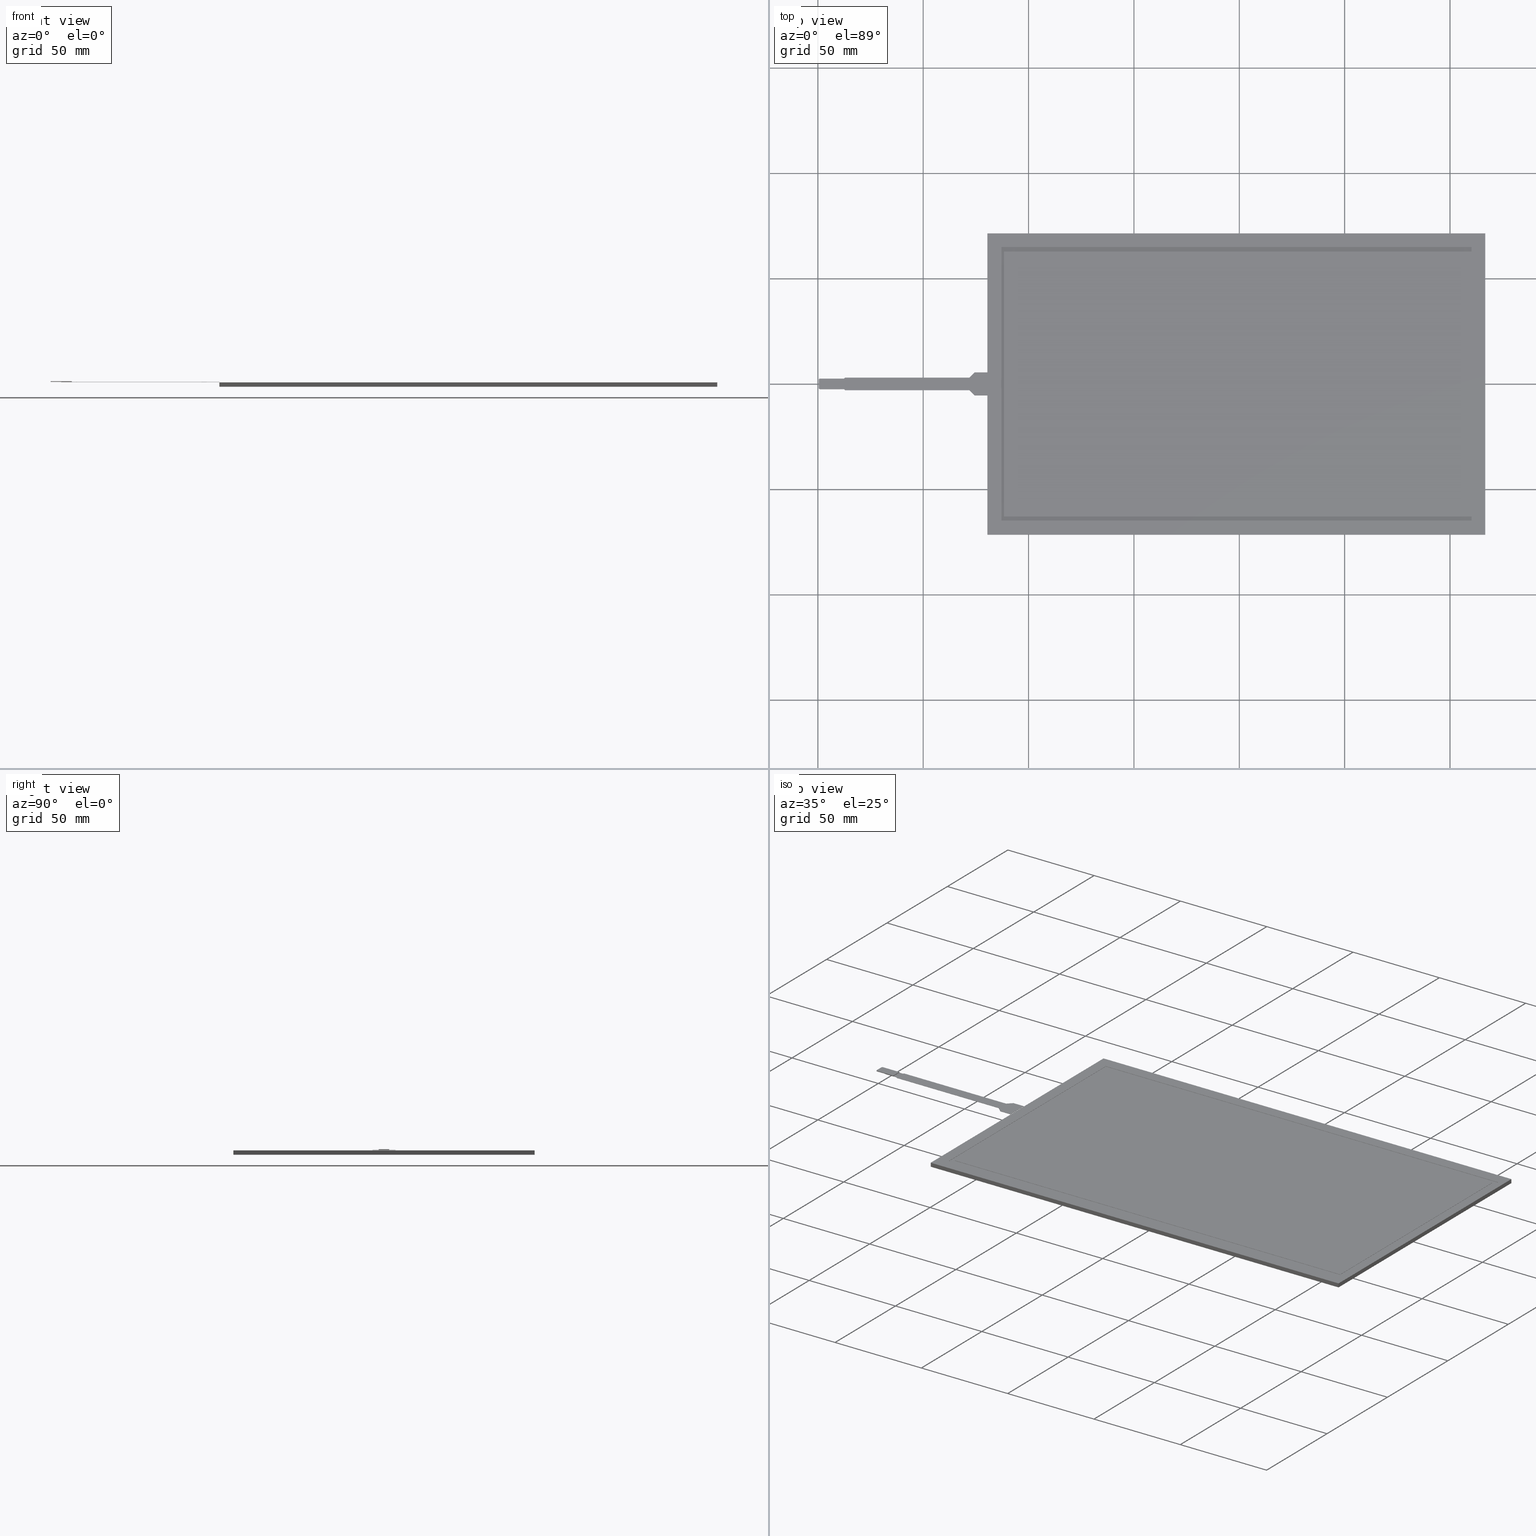
[diagram: canonical four-view strip — front | top / right | iso, engineering-drawing reading convention]
A machine part, canonical four-view strip (front | top / right | iso — engineering-drawing reading convention). The complete STEP part file that produces these views, byte-faithful:
ISO-10303-21;
HEADER;
/* Generated by software containing ST-Developer
 * from STEP Tools, Inc. (www.steptools.com) 
 */

FILE_DESCRIPTION(
/* description */ (''),
/* implementation_level */ '2;1');

FILE_NAME(
/* name */ '',
/* time_stamp */ '2025-10-15T13:06:59+09:00',
/* author */ ('n-hirata'),
/* organization */ (''),
/* preprocessor_version */ 'ST-DEVELOPER v20',
/* originating_system */ 'Autodesk Inventor 2024',
/* authorisation */ '');

FILE_SCHEMA (('AUTOMOTIVE_DESIGN { 1 0 10303 214 3 1 1 }'));
ENDSEC;

DATA;
#10=MECHANICAL_DESIGN_GEOMETRIC_PRESENTATION_REPRESENTATION('',(#30,#31,
#32,#33,#34,#35,#36,#37,#38,#39,#40,#41,#42,#43,#44,#45),#1688);
#11=GEOMETRICALLY_BOUNDED_WIREFRAME_SHAPE_REPRESENTATION('',(#12),#1687);
#12=GEOMETRIC_CURVE_SET('\X2\30B930B130C330C1\X0\1',(#16,#17,#18,#19,#20,
#21,#22,#23,#24,#25,#26,#27,#28,#29));
#13=SHAPE_REPRESENTATION_RELATIONSHIP('SRR','None',#1695,#15);
#14=SHAPE_REPRESENTATION_RELATIONSHIP('SRR','None',#1695,#11);
#15=ADVANCED_BREP_SHAPE_REPRESENTATION('',(#64,#65),#1687);
#16=POLYLINE('',(#1657,#1658));
#17=POLYLINE('',(#1659,#1660));
#18=POLYLINE('',(#1661,#1662));
#19=POLYLINE('',(#1663,#1664));
#20=POLYLINE('',(#1665,#1666));
#21=POLYLINE('',(#1667,#1668));
#22=POLYLINE('',(#1669,#1670));
#23=POLYLINE('',(#1671,#1672));
#24=POLYLINE('',(#1673,#1674));
#25=POLYLINE('',(#1675,#1676));
#26=POLYLINE('',(#1677,#1678));
#27=POLYLINE('',(#1679,#1680));
#28=POLYLINE('',(#1681,#1682));
#29=POLYLINE('',(#1683,#1684));
#30=STYLED_ITEM('',(#1704),#64);
#31=STYLED_ITEM('',(#1704),#65);
#32=STYLED_ITEM('',(#1705),#16);
#33=STYLED_ITEM('',(#1705),#17);
#34=STYLED_ITEM('',(#1706),#18);
#35=STYLED_ITEM('',(#1706),#19);
#36=STYLED_ITEM('',(#1706),#20);
#37=STYLED_ITEM('',(#1706),#21);
#38=STYLED_ITEM('',(#1706),#22);
#39=STYLED_ITEM('',(#1706),#23);
#40=STYLED_ITEM('',(#1706),#24);
#41=STYLED_ITEM('',(#1706),#25);
#42=STYLED_ITEM('',(#1706),#26);
#43=STYLED_ITEM('',(#1706),#27);
#44=STYLED_ITEM('',(#1706),#28);
#45=STYLED_ITEM('',(#1706),#29);
#46=CIRCLE('',#1071,0.29999999999996);
#47=CIRCLE('',#1072,0.29999999999996);
#48=CIRCLE('',#1077,0.29999999999996);
#49=CIRCLE('',#1078,0.29999999999996);
#50=CIRCLE('',#1083,0.29999999999996);
#51=CIRCLE('',#1084,0.29999999999996);
#52=CIRCLE('',#1089,0.5);
#53=CIRCLE('',#1090,0.5);
#54=CIRCLE('',#1091,0.29999999999996);
#55=CIRCLE('',#1093,0.29999999999996);
#56=CIRCLE('',#1099,0.5);
#57=CIRCLE('',#1102,0.5);
#58=CYLINDRICAL_SURFACE('',#1070,0.29999999999996);
#59=CYLINDRICAL_SURFACE('',#1076,0.29999999999996);
#60=CYLINDRICAL_SURFACE('',#1082,0.29999999999996);
#61=CYLINDRICAL_SURFACE('',#1092,0.29999999999996);
#62=CYLINDRICAL_SURFACE('',#1098,0.5);
#63=CYLINDRICAL_SURFACE('',#1101,0.5);
#64=MANIFOLD_SOLID_BREP('\X2\30BD30EA30C330C9\X0\1',#1030);
#65=MANIFOLD_SOLID_BREP('\X2\30BD30EA30C330C9\X0\1',#1031);
#66=FACE_BOUND('',#129,.T.);
#67=FACE_BOUND('',#131,.T.);
#68=FACE_OUTER_BOUND('',#120,.T.);
#69=FACE_OUTER_BOUND('',#121,.T.);
#70=FACE_OUTER_BOUND('',#122,.T.);
#71=FACE_OUTER_BOUND('',#123,.T.);
#72=FACE_OUTER_BOUND('',#124,.T.);
#73=FACE_OUTER_BOUND('',#125,.T.);
#74=FACE_OUTER_BOUND('',#126,.T.);
#75=FACE_OUTER_BOUND('',#127,.T.);
#76=FACE_OUTER_BOUND('',#128,.T.);
#77=FACE_OUTER_BOUND('',#130,.T.);
#78=FACE_OUTER_BOUND('',#132,.T.);
#79=FACE_OUTER_BOUND('',#133,.T.);
#80=FACE_OUTER_BOUND('',#134,.T.);
#81=FACE_OUTER_BOUND('',#135,.T.);
#82=FACE_OUTER_BOUND('',#136,.T.);
#83=FACE_OUTER_BOUND('',#137,.T.);
#84=FACE_OUTER_BOUND('',#138,.T.);
#85=FACE_OUTER_BOUND('',#139,.T.);
#86=FACE_OUTER_BOUND('',#140,.T.);
#87=FACE_OUTER_BOUND('',#141,.T.);
#88=FACE_OUTER_BOUND('',#142,.T.);
#89=FACE_OUTER_BOUND('',#143,.T.);
#90=FACE_OUTER_BOUND('',#144,.T.);
#91=FACE_OUTER_BOUND('',#145,.T.);
#92=FACE_OUTER_BOUND('',#146,.T.);
#93=FACE_OUTER_BOUND('',#147,.T.);
#94=FACE_OUTER_BOUND('',#148,.T.);
#95=FACE_OUTER_BOUND('',#149,.T.);
#96=FACE_OUTER_BOUND('',#150,.T.);
#97=FACE_OUTER_BOUND('',#151,.T.);
#98=FACE_OUTER_BOUND('',#152,.T.);
#99=FACE_OUTER_BOUND('',#153,.T.);
#100=FACE_OUTER_BOUND('',#154,.T.);
#101=FACE_OUTER_BOUND('',#155,.T.);
#102=FACE_OUTER_BOUND('',#156,.T.);
#103=FACE_OUTER_BOUND('',#157,.T.);
#104=FACE_OUTER_BOUND('',#158,.T.);
#105=FACE_OUTER_BOUND('',#159,.T.);
#106=FACE_OUTER_BOUND('',#160,.T.);
#107=FACE_OUTER_BOUND('',#161,.T.);
#108=FACE_OUTER_BOUND('',#162,.T.);
#109=FACE_OUTER_BOUND('',#163,.T.);
#110=FACE_OUTER_BOUND('',#164,.T.);
#111=FACE_OUTER_BOUND('',#165,.T.);
#112=FACE_OUTER_BOUND('',#166,.T.);
#113=FACE_OUTER_BOUND('',#167,.T.);
#114=FACE_OUTER_BOUND('',#168,.T.);
#115=FACE_OUTER_BOUND('',#169,.T.);
#116=FACE_OUTER_BOUND('',#170,.T.);
#117=FACE_OUTER_BOUND('',#171,.T.);
#118=FACE_OUTER_BOUND('',#172,.T.);
#119=FACE_OUTER_BOUND('',#173,.T.);
#120=EDGE_LOOP('',(#656,#657,#658,#659));
#121=EDGE_LOOP('',(#660,#661,#662,#663));
#122=EDGE_LOOP('',(#664,#665,#666,#667));
#123=EDGE_LOOP('',(#668,#669,#670,#671));
#124=EDGE_LOOP('',(#672,#673,#674,#675));
#125=EDGE_LOOP('',(#676,#677,#678,#679));
#126=EDGE_LOOP('',(#680,#681,#682,#683));
#127=EDGE_LOOP('',(#684,#685,#686,#687));
#128=EDGE_LOOP('',(#688,#689,#690,#691));
#129=EDGE_LOOP('',(#692,#693,#694,#695));
#130=EDGE_LOOP('',(#696,#697,#698,#699));
#131=EDGE_LOOP('',(#700,#701,#702,#703));
#132=EDGE_LOOP('',(#704,#705,#706,#707));
#133=EDGE_LOOP('',(#708,#709,#710,#711));
#134=EDGE_LOOP('',(#712,#713,#714,#715));
#135=EDGE_LOOP('',(#716,#717,#718,#719));
#136=EDGE_LOOP('',(#720,#721,#722,#723));
#137=EDGE_LOOP('',(#724,#725,#726,#727));
#138=EDGE_LOOP('',(#728,#729,#730,#731));
#139=EDGE_LOOP('',(#732,#733,#734,#735));
#140=EDGE_LOOP('',(#736,#737,#738,#739));
#141=EDGE_LOOP('',(#740,#741,#742,#743));
#142=EDGE_LOOP('',(#744,#745,#746,#747));
#143=EDGE_LOOP('',(#748,#749,#750,#751));
#144=EDGE_LOOP('',(#752,#753,#754,#755));
#145=EDGE_LOOP('',(#756,#757,#758,#759));
#146=EDGE_LOOP('',(#760,#761,#762,#763));
#147=EDGE_LOOP('',(#764,#765,#766,#767));
#148=EDGE_LOOP('',(#768,#769,#770,#771));
#149=EDGE_LOOP('',(#772,#773,#774,#775));
#150=EDGE_LOOP('',(#776,#777,#778,#779,#780,#781,#782,#783,#784,#785,#786,
#787,#788,#789,#790,#791,#792,#793,#794,#795,#796,#797));
#151=EDGE_LOOP('',(#798,#799,#800,#801));
#152=EDGE_LOOP('',(#802,#803,#804,#805));
#153=EDGE_LOOP('',(#806,#807,#808,#809));
#154=EDGE_LOOP('',(#810,#811,#812,#813));
#155=EDGE_LOOP('',(#814,#815,#816,#817,#818,#819,#820,#821,#822,#823,#824,
#825,#826,#827,#828,#829,#830,#831,#832,#833));
#156=EDGE_LOOP('',(#834,#835,#836,#837));
#157=EDGE_LOOP('',(#838,#839,#840,#841));
#158=EDGE_LOOP('',(#842,#843,#844,#845));
#159=EDGE_LOOP('',(#846,#847,#848,#849,#850,#851,#852,#853));
#160=EDGE_LOOP('',(#854,#855,#856,#857));
#161=EDGE_LOOP('',(#858,#859,#860,#861,#862,#863));
#162=EDGE_LOOP('',(#864,#865,#866,#867));
#163=EDGE_LOOP('',(#868,#869,#870,#871));
#164=EDGE_LOOP('',(#872,#873,#874,#875));
#165=EDGE_LOOP('',(#876,#877,#878,#879));
#166=EDGE_LOOP('',(#880,#881,#882,#883));
#167=EDGE_LOOP('',(#884,#885,#886,#887,#888,#889,#890,#891));
#168=EDGE_LOOP('',(#892,#893,#894,#895));
#169=EDGE_LOOP('',(#896,#897,#898,#899));
#170=EDGE_LOOP('',(#900,#901,#902,#903));
#171=EDGE_LOOP('',(#904,#905,#906,#907));
#172=EDGE_LOOP('',(#908,#909,#910,#911,#912,#913,#914,#915,#916,#917,#918,
#919));
#173=EDGE_LOOP('',(#920,#921,#922,#923,#924,#925,#926,#927,#928,#929,#930,
#931));
#174=LINE('',#1378,#300);
#175=LINE('',#1380,#301);
#176=LINE('',#1382,#302);
#177=LINE('',#1383,#303);
#178=LINE('',#1386,#304);
#179=LINE('',#1388,#305);
#180=LINE('',#1389,#306);
#181=LINE('',#1392,#307);
#182=LINE('',#1394,#308);
#183=LINE('',#1395,#309);
#184=LINE('',#1397,#310);
#185=LINE('',#1398,#311);
#186=LINE('',#1402,#312);
#187=LINE('',#1404,#313);
#188=LINE('',#1406,#314);
#189=LINE('',#1407,#315);
#190=LINE('',#1410,#316);
#191=LINE('',#1412,#317);
#192=LINE('',#1413,#318);
#193=LINE('',#1416,#319);
#194=LINE('',#1418,#320);
#195=LINE('',#1419,#321);
#196=LINE('',#1421,#322);
#197=LINE('',#1422,#323);
#198=LINE('',#1427,#324);
#199=LINE('',#1429,#325);
#200=LINE('',#1431,#326);
#201=LINE('',#1432,#327);
#202=LINE('',#1435,#328);
#203=LINE('',#1437,#329);
#204=LINE('',#1438,#330);
#205=LINE('',#1441,#331);
#206=LINE('',#1442,#332);
#207=LINE('',#1445,#333);
#208=LINE('',#1446,#334);
#209=LINE('',#1448,#335);
#210=LINE('',#1456,#336);
#211=LINE('',#1459,#337);
#212=LINE('',#1462,#338);
#213=LINE('',#1464,#339);
#214=LINE('',#1465,#340);
#215=LINE('',#1468,#341);
#216=LINE('',#1470,#342);
#217=LINE('',#1471,#343);
#218=LINE('',#1473,#344);
#219=LINE('',#1479,#345);
#220=LINE('',#1482,#346);
#221=LINE('',#1485,#347);
#222=LINE('',#1487,#348);
#223=LINE('',#1488,#349);
#224=LINE('',#1491,#350);
#225=LINE('',#1493,#351);
#226=LINE('',#1494,#352);
#227=LINE('',#1496,#353);
#228=LINE('',#1502,#354);
#229=LINE('',#1505,#355);
#230=LINE('',#1508,#356);
#231=LINE('',#1510,#357);
#232=LINE('',#1511,#358);
#233=LINE('',#1514,#359);
#234=LINE('',#1516,#360);
#235=LINE('',#1517,#361);
#236=LINE('',#1519,#362);
#237=LINE('',#1522,#363);
#238=LINE('',#1524,#364);
#239=LINE('',#1528,#365);
#240=LINE('',#1532,#366);
#241=LINE('',#1534,#367);
#242=LINE('',#1536,#368);
#243=LINE('',#1540,#369);
#244=LINE('',#1541,#370);
#245=LINE('',#1542,#371);
#246=LINE('',#1543,#372);
#247=LINE('',#1546,#373);
#248=LINE('',#1549,#374);
#249=LINE('',#1552,#375);
#250=LINE('',#1553,#376);
#251=LINE('',#1556,#377);
#252=LINE('',#1557,#378);
#253=LINE('',#1559,#379);
#254=LINE('',#1562,#380);
#255=LINE('',#1564,#381);
#256=LINE('',#1565,#382);
#257=LINE('',#1570,#383);
#258=LINE('',#1571,#384);
#259=LINE('',#1574,#385);
#260=LINE('',#1575,#386);
#261=LINE('',#1579,#387);
#262=LINE('',#1582,#388);
#263=LINE('',#1584,#389);
#264=LINE('',#1586,#390);
#265=LINE('',#1588,#391);
#266=LINE('',#1589,#392);
#267=LINE('',#1592,#393);
#268=LINE('',#1594,#394);
#269=LINE('',#1595,#395);
#270=LINE('',#1597,#396);
#271=LINE('',#1601,#397);
#272=LINE('',#1603,#398);
#273=LINE('',#1605,#399);
#274=LINE('',#1606,#400);
#275=LINE('',#1609,#401);
#276=LINE('',#1611,#402);
#277=LINE('',#1612,#403);
#278=LINE('',#1615,#404);
#279=LINE('',#1617,#405);
#280=LINE('',#1618,#406);
#281=LINE('',#1621,#407);
#282=LINE('',#1623,#408);
#283=LINE('',#1624,#409);
#284=LINE('',#1627,#410);
#285=LINE('',#1629,#411);
#286=LINE('',#1630,#412);
#287=LINE('',#1632,#413);
#288=LINE('',#1633,#414);
#289=LINE('',#1636,#415);
#290=LINE('',#1638,#416);
#291=LINE('',#1639,#417);
#292=LINE('',#1642,#418);
#293=LINE('',#1644,#419);
#294=LINE('',#1645,#420);
#295=LINE('',#1648,#421);
#296=LINE('',#1650,#422);
#297=LINE('',#1651,#423);
#298=LINE('',#1653,#424);
#299=LINE('',#1654,#425);
#300=VECTOR('',#1122,10.);
#301=VECTOR('',#1123,10.);
#302=VECTOR('',#1124,10.);
#303=VECTOR('',#1125,10.);
#304=VECTOR('',#1128,10.);
#305=VECTOR('',#1129,10.);
#306=VECTOR('',#1130,10.);
#307=VECTOR('',#1133,10.);
#308=VECTOR('',#1134,10.);
#309=VECTOR('',#1135,10.);
#310=VECTOR('',#1138,10.);
#311=VECTOR('',#1139,10.);
#312=VECTOR('',#1142,10.);
#313=VECTOR('',#1143,10.);
#314=VECTOR('',#1144,10.);
#315=VECTOR('',#1145,10.);
#316=VECTOR('',#1148,10.);
#317=VECTOR('',#1149,10.);
#318=VECTOR('',#1150,10.);
#319=VECTOR('',#1153,10.);
#320=VECTOR('',#1154,10.);
#321=VECTOR('',#1155,10.);
#322=VECTOR('',#1158,10.);
#323=VECTOR('',#1159,10.);
#324=VECTOR('',#1164,10.);
#325=VECTOR('',#1165,10.);
#326=VECTOR('',#1166,10.);
#327=VECTOR('',#1167,10.);
#328=VECTOR('',#1170,10.);
#329=VECTOR('',#1171,10.);
#330=VECTOR('',#1172,10.);
#331=VECTOR('',#1175,10.);
#332=VECTOR('',#1176,10.);
#333=VECTOR('',#1179,10.);
#334=VECTOR('',#1180,10.);
#335=VECTOR('',#1183,10.);
#336=VECTOR('',#1192,10.);
#337=VECTOR('',#1195,10.);
#338=VECTOR('',#1198,10.);
#339=VECTOR('',#1199,10.);
#340=VECTOR('',#1200,10.);
#341=VECTOR('',#1203,10.);
#342=VECTOR('',#1204,10.);
#343=VECTOR('',#1205,10.);
#344=VECTOR('',#1208,10.);
#345=VECTOR('',#1213,10.);
#346=VECTOR('',#1216,10.);
#347=VECTOR('',#1219,10.);
#348=VECTOR('',#1220,10.);
#349=VECTOR('',#1221,10.);
#350=VECTOR('',#1224,10.);
#351=VECTOR('',#1225,10.);
#352=VECTOR('',#1226,10.);
#353=VECTOR('',#1229,10.);
#354=VECTOR('',#1234,10.);
#355=VECTOR('',#1237,10.);
#356=VECTOR('',#1240,10.);
#357=VECTOR('',#1241,10.);
#358=VECTOR('',#1242,10.);
#359=VECTOR('',#1245,10.);
#360=VECTOR('',#1246,10.);
#361=VECTOR('',#1247,10.);
#362=VECTOR('',#1250,10.);
#363=VECTOR('',#1253,10.);
#364=VECTOR('',#1254,10.);
#365=VECTOR('',#1257,10.);
#366=VECTOR('',#1260,10.);
#367=VECTOR('',#1261,10.);
#368=VECTOR('',#1262,10.);
#369=VECTOR('',#1265,10.);
#370=VECTOR('',#1266,10.);
#371=VECTOR('',#1267,10.);
#372=VECTOR('',#1268,10.);
#373=VECTOR('',#1271,10.);
#374=VECTOR('',#1274,10.);
#375=VECTOR('',#1277,10.);
#376=VECTOR('',#1278,10.);
#377=VECTOR('',#1281,10.);
#378=VECTOR('',#1282,10.);
#379=VECTOR('',#1285,10.);
#380=VECTOR('',#1288,10.);
#381=VECTOR('',#1289,10.);
#382=VECTOR('',#1290,10.);
#383=VECTOR('',#1295,10.);
#384=VECTOR('',#1296,10.);
#385=VECTOR('',#1299,10.);
#386=VECTOR('',#1300,10.);
#387=VECTOR('',#1305,10.);
#388=VECTOR('',#1308,10.);
#389=VECTOR('',#1309,10.);
#390=VECTOR('',#1310,10.);
#391=VECTOR('',#1311,10.);
#392=VECTOR('',#1312,10.);
#393=VECTOR('',#1315,10.);
#394=VECTOR('',#1316,10.);
#395=VECTOR('',#1317,10.);
#396=VECTOR('',#1320,10.);
#397=VECTOR('',#1323,10.);
#398=VECTOR('',#1324,10.);
#399=VECTOR('',#1325,10.);
#400=VECTOR('',#1326,10.);
#401=VECTOR('',#1329,10.);
#402=VECTOR('',#1330,10.);
#403=VECTOR('',#1331,10.);
#404=VECTOR('',#1334,10.);
#405=VECTOR('',#1335,10.);
#406=VECTOR('',#1336,10.);
#407=VECTOR('',#1339,10.);
#408=VECTOR('',#1340,10.);
#409=VECTOR('',#1341,10.);
#410=VECTOR('',#1344,10.);
#411=VECTOR('',#1345,10.);
#412=VECTOR('',#1346,10.);
#413=VECTOR('',#1349,10.);
#414=VECTOR('',#1350,10.);
#415=VECTOR('',#1353,10.);
#416=VECTOR('',#1354,10.);
#417=VECTOR('',#1355,10.);
#418=VECTOR('',#1358,10.);
#419=VECTOR('',#1359,10.);
#420=VECTOR('',#1360,10.);
#421=VECTOR('',#1363,10.);
#422=VECTOR('',#1364,10.);
#423=VECTOR('',#1365,10.);
#424=VECTOR('',#1368,10.);
#425=VECTOR('',#1369,10.);
#426=VERTEX_POINT('',#1376);
#427=VERTEX_POINT('',#1377);
#428=VERTEX_POINT('',#1379);
#429=VERTEX_POINT('',#1381);
#430=VERTEX_POINT('',#1385);
#431=VERTEX_POINT('',#1387);
#432=VERTEX_POINT('',#1391);
#433=VERTEX_POINT('',#1393);
#434=VERTEX_POINT('',#1400);
#435=VERTEX_POINT('',#1401);
#436=VERTEX_POINT('',#1403);
#437=VERTEX_POINT('',#1405);
#438=VERTEX_POINT('',#1409);
#439=VERTEX_POINT('',#1411);
#440=VERTEX_POINT('',#1415);
#441=VERTEX_POINT('',#1417);
#442=VERTEX_POINT('',#1425);
#443=VERTEX_POINT('',#1426);
#444=VERTEX_POINT('',#1428);
#445=VERTEX_POINT('',#1430);
#446=VERTEX_POINT('',#1434);
#447=VERTEX_POINT('',#1436);
#448=VERTEX_POINT('',#1440);
#449=VERTEX_POINT('',#1444);
#450=VERTEX_POINT('',#1452);
#451=VERTEX_POINT('',#1453);
#452=VERTEX_POINT('',#1455);
#453=VERTEX_POINT('',#1457);
#454=VERTEX_POINT('',#1461);
#455=VERTEX_POINT('',#1463);
#456=VERTEX_POINT('',#1467);
#457=VERTEX_POINT('',#1469);
#458=VERTEX_POINT('',#1475);
#459=VERTEX_POINT('',#1476);
#460=VERTEX_POINT('',#1478);
#461=VERTEX_POINT('',#1480);
#462=VERTEX_POINT('',#1484);
#463=VERTEX_POINT('',#1486);
#464=VERTEX_POINT('',#1490);
#465=VERTEX_POINT('',#1492);
#466=VERTEX_POINT('',#1498);
#467=VERTEX_POINT('',#1499);
#468=VERTEX_POINT('',#1501);
#469=VERTEX_POINT('',#1503);
#470=VERTEX_POINT('',#1507);
#471=VERTEX_POINT('',#1509);
#472=VERTEX_POINT('',#1513);
#473=VERTEX_POINT('',#1515);
#474=VERTEX_POINT('',#1521);
#475=VERTEX_POINT('',#1523);
#476=VERTEX_POINT('',#1525);
#477=VERTEX_POINT('',#1527);
#478=VERTEX_POINT('',#1529);
#479=VERTEX_POINT('',#1531);
#480=VERTEX_POINT('',#1533);
#481=VERTEX_POINT('',#1535);
#482=VERTEX_POINT('',#1537);
#483=VERTEX_POINT('',#1539);
#484=VERTEX_POINT('',#1545);
#485=VERTEX_POINT('',#1547);
#486=VERTEX_POINT('',#1551);
#487=VERTEX_POINT('',#1555);
#488=VERTEX_POINT('',#1561);
#489=VERTEX_POINT('',#1563);
#490=VERTEX_POINT('',#1567);
#491=VERTEX_POINT('',#1568);
#492=VERTEX_POINT('',#1573);
#493=VERTEX_POINT('',#1577);
#494=VERTEX_POINT('',#1581);
#495=VERTEX_POINT('',#1583);
#496=VERTEX_POINT('',#1585);
#497=VERTEX_POINT('',#1587);
#498=VERTEX_POINT('',#1591);
#499=VERTEX_POINT('',#1593);
#500=VERTEX_POINT('',#1599);
#501=VERTEX_POINT('',#1600);
#502=VERTEX_POINT('',#1602);
#503=VERTEX_POINT('',#1604);
#504=VERTEX_POINT('',#1608);
#505=VERTEX_POINT('',#1610);
#506=VERTEX_POINT('',#1614);
#507=VERTEX_POINT('',#1616);
#508=VERTEX_POINT('',#1620);
#509=VERTEX_POINT('',#1622);
#510=VERTEX_POINT('',#1626);
#511=VERTEX_POINT('',#1628);
#512=VERTEX_POINT('',#1635);
#513=VERTEX_POINT('',#1637);
#514=VERTEX_POINT('',#1641);
#515=VERTEX_POINT('',#1643);
#516=VERTEX_POINT('',#1647);
#517=VERTEX_POINT('',#1649);
#518=EDGE_CURVE('',#426,#427,#174,.T.);
#519=EDGE_CURVE('',#426,#428,#175,.T.);
#520=EDGE_CURVE('',#428,#429,#176,.T.);
#521=EDGE_CURVE('',#427,#429,#177,.T.);
#522=EDGE_CURVE('',#430,#426,#178,.T.);
#523=EDGE_CURVE('',#430,#431,#179,.T.);
#524=EDGE_CURVE('',#431,#428,#180,.T.);
#525=EDGE_CURVE('',#432,#430,#181,.T.);
#526=EDGE_CURVE('',#432,#433,#182,.T.);
#527=EDGE_CURVE('',#433,#431,#183,.T.);
#528=EDGE_CURVE('',#427,#432,#184,.T.);
#529=EDGE_CURVE('',#429,#433,#185,.T.);
#530=EDGE_CURVE('',#434,#435,#186,.T.);
#531=EDGE_CURVE('',#434,#436,#187,.T.);
#532=EDGE_CURVE('',#436,#437,#188,.T.);
#533=EDGE_CURVE('',#435,#437,#189,.T.);
#534=EDGE_CURVE('',#438,#434,#190,.T.);
#535=EDGE_CURVE('',#438,#439,#191,.T.);
#536=EDGE_CURVE('',#439,#436,#192,.T.);
#537=EDGE_CURVE('',#440,#438,#193,.T.);
#538=EDGE_CURVE('',#440,#441,#194,.T.);
#539=EDGE_CURVE('',#441,#439,#195,.T.);
#540=EDGE_CURVE('',#435,#440,#196,.T.);
#541=EDGE_CURVE('',#437,#441,#197,.T.);
#542=EDGE_CURVE('',#442,#443,#198,.T.);
#543=EDGE_CURVE('',#443,#444,#199,.T.);
#544=EDGE_CURVE('',#444,#445,#200,.T.);
#545=EDGE_CURVE('',#445,#442,#201,.T.);
#546=EDGE_CURVE('',#443,#446,#202,.T.);
#547=EDGE_CURVE('',#447,#446,#203,.T.);
#548=EDGE_CURVE('',#444,#447,#204,.T.);
#549=EDGE_CURVE('',#448,#447,#205,.T.);
#550=EDGE_CURVE('',#445,#448,#206,.T.);
#551=EDGE_CURVE('',#449,#448,#207,.T.);
#552=EDGE_CURVE('',#442,#449,#208,.T.);
#553=EDGE_CURVE('',#446,#449,#209,.T.);
#554=EDGE_CURVE('',#450,#451,#46,.T.);
#555=EDGE_CURVE('',#450,#452,#210,.T.);
#556=EDGE_CURVE('',#453,#452,#47,.T.);
#557=EDGE_CURVE('',#451,#453,#211,.T.);
#558=EDGE_CURVE('',#451,#454,#212,.T.);
#559=EDGE_CURVE('',#455,#453,#213,.T.);
#560=EDGE_CURVE('',#454,#455,#214,.T.);
#561=EDGE_CURVE('',#456,#450,#215,.T.);
#562=EDGE_CURVE('',#457,#456,#216,.T.);
#563=EDGE_CURVE('',#452,#457,#217,.T.);
#564=EDGE_CURVE('',#455,#457,#218,.T.);
#565=EDGE_CURVE('',#458,#459,#48,.T.);
#566=EDGE_CURVE('',#458,#460,#219,.T.);
#567=EDGE_CURVE('',#461,#460,#49,.T.);
#568=EDGE_CURVE('',#459,#461,#220,.T.);
#569=EDGE_CURVE('',#459,#462,#221,.T.);
#570=EDGE_CURVE('',#463,#461,#222,.T.);
#571=EDGE_CURVE('',#462,#463,#223,.T.);
#572=EDGE_CURVE('',#464,#458,#224,.T.);
#573=EDGE_CURVE('',#465,#464,#225,.T.);
#574=EDGE_CURVE('',#460,#465,#226,.T.);
#575=EDGE_CURVE('',#463,#465,#227,.T.);
#576=EDGE_CURVE('',#466,#467,#50,.T.);
#577=EDGE_CURVE('',#466,#468,#228,.T.);
#578=EDGE_CURVE('',#469,#468,#51,.T.);
#579=EDGE_CURVE('',#467,#469,#229,.T.);
#580=EDGE_CURVE('',#467,#470,#230,.T.);
#581=EDGE_CURVE('',#471,#469,#231,.T.);
#582=EDGE_CURVE('',#470,#471,#232,.T.);
#583=EDGE_CURVE('',#472,#466,#233,.T.);
#584=EDGE_CURVE('',#473,#472,#234,.T.);
#585=EDGE_CURVE('',#468,#473,#235,.T.);
#586=EDGE_CURVE('',#471,#473,#236,.T.);
#587=EDGE_CURVE('',#474,#454,#237,.T.);
#588=EDGE_CURVE('',#475,#474,#238,.T.);
#589=EDGE_CURVE('',#476,#475,#52,.T.);
#590=EDGE_CURVE('',#477,#476,#239,.T.);
#591=EDGE_CURVE('',#478,#477,#53,.T.);
#592=EDGE_CURVE('',#479,#478,#240,.T.);
#593=EDGE_CURVE('',#480,#479,#241,.T.);
#594=EDGE_CURVE('',#480,#481,#242,.T.);
#595=EDGE_CURVE('',#481,#482,#54,.T.);
#596=EDGE_CURVE('',#482,#483,#243,.T.);
#597=EDGE_CURVE('',#472,#483,#244,.T.);
#598=EDGE_CURVE('',#464,#470,#245,.T.);
#599=EDGE_CURVE('',#456,#462,#246,.T.);
#600=EDGE_CURVE('',#481,#484,#247,.T.);
#601=EDGE_CURVE('',#485,#484,#55,.T.);
#602=EDGE_CURVE('',#482,#485,#248,.T.);
#603=EDGE_CURVE('',#486,#485,#249,.T.);
#604=EDGE_CURVE('',#483,#486,#250,.T.);
#605=EDGE_CURVE('',#487,#480,#251,.T.);
#606=EDGE_CURVE('',#484,#487,#252,.T.);
#607=EDGE_CURVE('',#486,#487,#253,.T.);
#608=EDGE_CURVE('',#488,#479,#254,.T.);
#609=EDGE_CURVE('',#489,#488,#255,.T.);
#610=EDGE_CURVE('',#474,#489,#256,.T.);
#611=EDGE_CURVE('',#490,#491,#56,.T.);
#612=EDGE_CURVE('',#491,#476,#257,.T.);
#613=EDGE_CURVE('',#475,#490,#258,.T.);
#614=EDGE_CURVE('',#492,#491,#259,.T.);
#615=EDGE_CURVE('',#477,#492,#260,.T.);
#616=EDGE_CURVE('',#492,#493,#57,.T.);
#617=EDGE_CURVE('',#493,#478,#261,.T.);
#618=EDGE_CURVE('',#494,#489,#262,.T.);
#619=EDGE_CURVE('',#495,#494,#263,.T.);
#620=EDGE_CURVE('',#496,#495,#264,.T.);
#621=EDGE_CURVE('',#496,#497,#265,.T.);
#622=EDGE_CURVE('',#490,#497,#266,.T.);
#623=EDGE_CURVE('',#498,#496,#267,.T.);
#624=EDGE_CURVE('',#498,#499,#268,.T.);
#625=EDGE_CURVE('',#497,#499,#269,.T.);
#626=EDGE_CURVE('',#499,#493,#270,.T.);
#627=EDGE_CURVE('',#500,#501,#271,.T.);
#628=EDGE_CURVE('',#500,#502,#272,.T.);
#629=EDGE_CURVE('',#503,#502,#273,.T.);
#630=EDGE_CURVE('',#501,#503,#274,.T.);
#631=EDGE_CURVE('',#501,#504,#275,.T.);
#632=EDGE_CURVE('',#505,#503,#276,.T.);
#633=EDGE_CURVE('',#504,#505,#277,.T.);
#634=EDGE_CURVE('',#504,#506,#278,.T.);
#635=EDGE_CURVE('',#507,#505,#279,.T.);
#636=EDGE_CURVE('',#506,#507,#280,.T.);
#637=EDGE_CURVE('',#506,#508,#281,.T.);
#638=EDGE_CURVE('',#509,#507,#282,.T.);
#639=EDGE_CURVE('',#508,#509,#283,.T.);
#640=EDGE_CURVE('',#508,#510,#284,.T.);
#641=EDGE_CURVE('',#511,#509,#285,.T.);
#642=EDGE_CURVE('',#510,#511,#286,.T.);
#643=EDGE_CURVE('',#510,#498,#287,.T.);
#644=EDGE_CURVE('',#488,#511,#288,.T.);
#645=EDGE_CURVE('',#495,#512,#289,.T.);
#646=EDGE_CURVE('',#513,#494,#290,.T.);
#647=EDGE_CURVE('',#512,#513,#291,.T.);
#648=EDGE_CURVE('',#512,#514,#292,.T.);
#649=EDGE_CURVE('',#515,#513,#293,.T.);
#650=EDGE_CURVE('',#514,#515,#294,.T.);
#651=EDGE_CURVE('',#514,#516,#295,.T.);
#652=EDGE_CURVE('',#517,#515,#296,.T.);
#653=EDGE_CURVE('',#516,#517,#297,.T.);
#654=EDGE_CURVE('',#516,#500,#298,.T.);
#655=EDGE_CURVE('',#502,#517,#299,.T.);
#656=ORIENTED_EDGE('',*,*,#518,.F.);
#657=ORIENTED_EDGE('',*,*,#519,.T.);
#658=ORIENTED_EDGE('',*,*,#520,.T.);
#659=ORIENTED_EDGE('',*,*,#521,.F.);
#660=ORIENTED_EDGE('',*,*,#522,.F.);
#661=ORIENTED_EDGE('',*,*,#523,.T.);
#662=ORIENTED_EDGE('',*,*,#524,.T.);
#663=ORIENTED_EDGE('',*,*,#519,.F.);
#664=ORIENTED_EDGE('',*,*,#525,.F.);
#665=ORIENTED_EDGE('',*,*,#526,.T.);
#666=ORIENTED_EDGE('',*,*,#527,.T.);
#667=ORIENTED_EDGE('',*,*,#523,.F.);
#668=ORIENTED_EDGE('',*,*,#528,.F.);
#669=ORIENTED_EDGE('',*,*,#521,.T.);
#670=ORIENTED_EDGE('',*,*,#529,.T.);
#671=ORIENTED_EDGE('',*,*,#526,.F.);
#672=ORIENTED_EDGE('',*,*,#530,.F.);
#673=ORIENTED_EDGE('',*,*,#531,.T.);
#674=ORIENTED_EDGE('',*,*,#532,.T.);
#675=ORIENTED_EDGE('',*,*,#533,.F.);
#676=ORIENTED_EDGE('',*,*,#534,.F.);
#677=ORIENTED_EDGE('',*,*,#535,.T.);
#678=ORIENTED_EDGE('',*,*,#536,.T.);
#679=ORIENTED_EDGE('',*,*,#531,.F.);
#680=ORIENTED_EDGE('',*,*,#537,.F.);
#681=ORIENTED_EDGE('',*,*,#538,.T.);
#682=ORIENTED_EDGE('',*,*,#539,.T.);
#683=ORIENTED_EDGE('',*,*,#535,.F.);
#684=ORIENTED_EDGE('',*,*,#540,.F.);
#685=ORIENTED_EDGE('',*,*,#533,.T.);
#686=ORIENTED_EDGE('',*,*,#541,.T.);
#687=ORIENTED_EDGE('',*,*,#538,.F.);
#688=ORIENTED_EDGE('',*,*,#541,.F.);
#689=ORIENTED_EDGE('',*,*,#532,.F.);
#690=ORIENTED_EDGE('',*,*,#536,.F.);
#691=ORIENTED_EDGE('',*,*,#539,.F.);
#692=ORIENTED_EDGE('',*,*,#529,.F.);
#693=ORIENTED_EDGE('',*,*,#520,.F.);
#694=ORIENTED_EDGE('',*,*,#524,.F.);
#695=ORIENTED_EDGE('',*,*,#527,.F.);
#696=ORIENTED_EDGE('',*,*,#542,.T.);
#697=ORIENTED_EDGE('',*,*,#543,.T.);
#698=ORIENTED_EDGE('',*,*,#544,.T.);
#699=ORIENTED_EDGE('',*,*,#545,.T.);
#700=ORIENTED_EDGE('',*,*,#530,.T.);
#701=ORIENTED_EDGE('',*,*,#540,.T.);
#702=ORIENTED_EDGE('',*,*,#537,.T.);
#703=ORIENTED_EDGE('',*,*,#534,.T.);
#704=ORIENTED_EDGE('',*,*,#543,.F.);
#705=ORIENTED_EDGE('',*,*,#546,.T.);
#706=ORIENTED_EDGE('',*,*,#547,.F.);
#707=ORIENTED_EDGE('',*,*,#548,.F.);
#708=ORIENTED_EDGE('',*,*,#544,.F.);
#709=ORIENTED_EDGE('',*,*,#548,.T.);
#710=ORIENTED_EDGE('',*,*,#549,.F.);
#711=ORIENTED_EDGE('',*,*,#550,.F.);
#712=ORIENTED_EDGE('',*,*,#545,.F.);
#713=ORIENTED_EDGE('',*,*,#550,.T.);
#714=ORIENTED_EDGE('',*,*,#551,.F.);
#715=ORIENTED_EDGE('',*,*,#552,.F.);
#716=ORIENTED_EDGE('',*,*,#542,.F.);
#717=ORIENTED_EDGE('',*,*,#552,.T.);
#718=ORIENTED_EDGE('',*,*,#553,.F.);
#719=ORIENTED_EDGE('',*,*,#546,.F.);
#720=ORIENTED_EDGE('',*,*,#518,.T.);
#721=ORIENTED_EDGE('',*,*,#528,.T.);
#722=ORIENTED_EDGE('',*,*,#525,.T.);
#723=ORIENTED_EDGE('',*,*,#522,.T.);
#724=ORIENTED_EDGE('',*,*,#553,.T.);
#725=ORIENTED_EDGE('',*,*,#551,.T.);
#726=ORIENTED_EDGE('',*,*,#549,.T.);
#727=ORIENTED_EDGE('',*,*,#547,.T.);
#728=ORIENTED_EDGE('',*,*,#554,.F.);
#729=ORIENTED_EDGE('',*,*,#555,.T.);
#730=ORIENTED_EDGE('',*,*,#556,.F.);
#731=ORIENTED_EDGE('',*,*,#557,.F.);
#732=ORIENTED_EDGE('',*,*,#558,.F.);
#733=ORIENTED_EDGE('',*,*,#557,.T.);
#734=ORIENTED_EDGE('',*,*,#559,.F.);
#735=ORIENTED_EDGE('',*,*,#560,.F.);
#736=ORIENTED_EDGE('',*,*,#561,.F.);
#737=ORIENTED_EDGE('',*,*,#562,.F.);
#738=ORIENTED_EDGE('',*,*,#563,.F.);
#739=ORIENTED_EDGE('',*,*,#555,.F.);
#740=ORIENTED_EDGE('',*,*,#563,.T.);
#741=ORIENTED_EDGE('',*,*,#564,.F.);
#742=ORIENTED_EDGE('',*,*,#559,.T.);
#743=ORIENTED_EDGE('',*,*,#556,.T.);
#744=ORIENTED_EDGE('',*,*,#565,.F.);
#745=ORIENTED_EDGE('',*,*,#566,.T.);
#746=ORIENTED_EDGE('',*,*,#567,.F.);
#747=ORIENTED_EDGE('',*,*,#568,.F.);
#748=ORIENTED_EDGE('',*,*,#569,.F.);
#749=ORIENTED_EDGE('',*,*,#568,.T.);
#750=ORIENTED_EDGE('',*,*,#570,.F.);
#751=ORIENTED_EDGE('',*,*,#571,.F.);
#752=ORIENTED_EDGE('',*,*,#572,.F.);
#753=ORIENTED_EDGE('',*,*,#573,.F.);
#754=ORIENTED_EDGE('',*,*,#574,.F.);
#755=ORIENTED_EDGE('',*,*,#566,.F.);
#756=ORIENTED_EDGE('',*,*,#574,.T.);
#757=ORIENTED_EDGE('',*,*,#575,.F.);
#758=ORIENTED_EDGE('',*,*,#570,.T.);
#759=ORIENTED_EDGE('',*,*,#567,.T.);
#760=ORIENTED_EDGE('',*,*,#576,.F.);
#761=ORIENTED_EDGE('',*,*,#577,.T.);
#762=ORIENTED_EDGE('',*,*,#578,.F.);
#763=ORIENTED_EDGE('',*,*,#579,.F.);
#764=ORIENTED_EDGE('',*,*,#580,.F.);
#765=ORIENTED_EDGE('',*,*,#579,.T.);
#766=ORIENTED_EDGE('',*,*,#581,.F.);
#767=ORIENTED_EDGE('',*,*,#582,.F.);
#768=ORIENTED_EDGE('',*,*,#583,.F.);
#769=ORIENTED_EDGE('',*,*,#584,.F.);
#770=ORIENTED_EDGE('',*,*,#585,.F.);
#771=ORIENTED_EDGE('',*,*,#577,.F.);
#772=ORIENTED_EDGE('',*,*,#585,.T.);
#773=ORIENTED_EDGE('',*,*,#586,.F.);
#774=ORIENTED_EDGE('',*,*,#581,.T.);
#775=ORIENTED_EDGE('',*,*,#578,.T.);
#776=ORIENTED_EDGE('',*,*,#561,.T.);
#777=ORIENTED_EDGE('',*,*,#554,.T.);
#778=ORIENTED_EDGE('',*,*,#558,.T.);
#779=ORIENTED_EDGE('',*,*,#587,.F.);
#780=ORIENTED_EDGE('',*,*,#588,.F.);
#781=ORIENTED_EDGE('',*,*,#589,.F.);
#782=ORIENTED_EDGE('',*,*,#590,.F.);
#783=ORIENTED_EDGE('',*,*,#591,.F.);
#784=ORIENTED_EDGE('',*,*,#592,.F.);
#785=ORIENTED_EDGE('',*,*,#593,.F.);
#786=ORIENTED_EDGE('',*,*,#594,.T.);
#787=ORIENTED_EDGE('',*,*,#595,.T.);
#788=ORIENTED_EDGE('',*,*,#596,.T.);
#789=ORIENTED_EDGE('',*,*,#597,.F.);
#790=ORIENTED_EDGE('',*,*,#583,.T.);
#791=ORIENTED_EDGE('',*,*,#576,.T.);
#792=ORIENTED_EDGE('',*,*,#580,.T.);
#793=ORIENTED_EDGE('',*,*,#598,.F.);
#794=ORIENTED_EDGE('',*,*,#572,.T.);
#795=ORIENTED_EDGE('',*,*,#565,.T.);
#796=ORIENTED_EDGE('',*,*,#569,.T.);
#797=ORIENTED_EDGE('',*,*,#599,.F.);
#798=ORIENTED_EDGE('',*,*,#595,.F.);
#799=ORIENTED_EDGE('',*,*,#600,.T.);
#800=ORIENTED_EDGE('',*,*,#601,.F.);
#801=ORIENTED_EDGE('',*,*,#602,.F.);
#802=ORIENTED_EDGE('',*,*,#596,.F.);
#803=ORIENTED_EDGE('',*,*,#602,.T.);
#804=ORIENTED_EDGE('',*,*,#603,.F.);
#805=ORIENTED_EDGE('',*,*,#604,.F.);
#806=ORIENTED_EDGE('',*,*,#594,.F.);
#807=ORIENTED_EDGE('',*,*,#605,.F.);
#808=ORIENTED_EDGE('',*,*,#606,.F.);
#809=ORIENTED_EDGE('',*,*,#600,.F.);
#810=ORIENTED_EDGE('',*,*,#606,.T.);
#811=ORIENTED_EDGE('',*,*,#607,.F.);
#812=ORIENTED_EDGE('',*,*,#603,.T.);
#813=ORIENTED_EDGE('',*,*,#601,.T.);
#814=ORIENTED_EDGE('',*,*,#562,.T.);
#815=ORIENTED_EDGE('',*,*,#599,.T.);
#816=ORIENTED_EDGE('',*,*,#571,.T.);
#817=ORIENTED_EDGE('',*,*,#575,.T.);
#818=ORIENTED_EDGE('',*,*,#573,.T.);
#819=ORIENTED_EDGE('',*,*,#598,.T.);
#820=ORIENTED_EDGE('',*,*,#582,.T.);
#821=ORIENTED_EDGE('',*,*,#586,.T.);
#822=ORIENTED_EDGE('',*,*,#584,.T.);
#823=ORIENTED_EDGE('',*,*,#597,.T.);
#824=ORIENTED_EDGE('',*,*,#604,.T.);
#825=ORIENTED_EDGE('',*,*,#607,.T.);
#826=ORIENTED_EDGE('',*,*,#605,.T.);
#827=ORIENTED_EDGE('',*,*,#593,.T.);
#828=ORIENTED_EDGE('',*,*,#608,.F.);
#829=ORIENTED_EDGE('',*,*,#609,.F.);
#830=ORIENTED_EDGE('',*,*,#610,.F.);
#831=ORIENTED_EDGE('',*,*,#587,.T.);
#832=ORIENTED_EDGE('',*,*,#560,.T.);
#833=ORIENTED_EDGE('',*,*,#564,.T.);
#834=ORIENTED_EDGE('',*,*,#611,.T.);
#835=ORIENTED_EDGE('',*,*,#612,.T.);
#836=ORIENTED_EDGE('',*,*,#589,.T.);
#837=ORIENTED_EDGE('',*,*,#613,.T.);
#838=ORIENTED_EDGE('',*,*,#612,.F.);
#839=ORIENTED_EDGE('',*,*,#614,.F.);
#840=ORIENTED_EDGE('',*,*,#615,.F.);
#841=ORIENTED_EDGE('',*,*,#590,.T.);
#842=ORIENTED_EDGE('',*,*,#616,.T.);
#843=ORIENTED_EDGE('',*,*,#617,.T.);
#844=ORIENTED_EDGE('',*,*,#591,.T.);
#845=ORIENTED_EDGE('',*,*,#615,.T.);
#846=ORIENTED_EDGE('',*,*,#613,.F.);
#847=ORIENTED_EDGE('',*,*,#588,.T.);
#848=ORIENTED_EDGE('',*,*,#610,.T.);
#849=ORIENTED_EDGE('',*,*,#618,.F.);
#850=ORIENTED_EDGE('',*,*,#619,.F.);
#851=ORIENTED_EDGE('',*,*,#620,.F.);
#852=ORIENTED_EDGE('',*,*,#621,.T.);
#853=ORIENTED_EDGE('',*,*,#622,.F.);
#854=ORIENTED_EDGE('',*,*,#623,.F.);
#855=ORIENTED_EDGE('',*,*,#624,.T.);
#856=ORIENTED_EDGE('',*,*,#625,.F.);
#857=ORIENTED_EDGE('',*,*,#621,.F.);
#858=ORIENTED_EDGE('',*,*,#611,.F.);
#859=ORIENTED_EDGE('',*,*,#622,.T.);
#860=ORIENTED_EDGE('',*,*,#625,.T.);
#861=ORIENTED_EDGE('',*,*,#626,.T.);
#862=ORIENTED_EDGE('',*,*,#616,.F.);
#863=ORIENTED_EDGE('',*,*,#614,.T.);
#864=ORIENTED_EDGE('',*,*,#627,.F.);
#865=ORIENTED_EDGE('',*,*,#628,.T.);
#866=ORIENTED_EDGE('',*,*,#629,.F.);
#867=ORIENTED_EDGE('',*,*,#630,.F.);
#868=ORIENTED_EDGE('',*,*,#631,.F.);
#869=ORIENTED_EDGE('',*,*,#630,.T.);
#870=ORIENTED_EDGE('',*,*,#632,.F.);
#871=ORIENTED_EDGE('',*,*,#633,.F.);
#872=ORIENTED_EDGE('',*,*,#634,.F.);
#873=ORIENTED_EDGE('',*,*,#633,.T.);
#874=ORIENTED_EDGE('',*,*,#635,.F.);
#875=ORIENTED_EDGE('',*,*,#636,.F.);
#876=ORIENTED_EDGE('',*,*,#637,.F.);
#877=ORIENTED_EDGE('',*,*,#636,.T.);
#878=ORIENTED_EDGE('',*,*,#638,.F.);
#879=ORIENTED_EDGE('',*,*,#639,.F.);
#880=ORIENTED_EDGE('',*,*,#640,.F.);
#881=ORIENTED_EDGE('',*,*,#639,.T.);
#882=ORIENTED_EDGE('',*,*,#641,.F.);
#883=ORIENTED_EDGE('',*,*,#642,.F.);
#884=ORIENTED_EDGE('',*,*,#617,.F.);
#885=ORIENTED_EDGE('',*,*,#626,.F.);
#886=ORIENTED_EDGE('',*,*,#624,.F.);
#887=ORIENTED_EDGE('',*,*,#643,.F.);
#888=ORIENTED_EDGE('',*,*,#642,.T.);
#889=ORIENTED_EDGE('',*,*,#644,.F.);
#890=ORIENTED_EDGE('',*,*,#608,.T.);
#891=ORIENTED_EDGE('',*,*,#592,.T.);
#892=ORIENTED_EDGE('',*,*,#645,.F.);
#893=ORIENTED_EDGE('',*,*,#619,.T.);
#894=ORIENTED_EDGE('',*,*,#646,.F.);
#895=ORIENTED_EDGE('',*,*,#647,.F.);
#896=ORIENTED_EDGE('',*,*,#648,.F.);
#897=ORIENTED_EDGE('',*,*,#647,.T.);
#898=ORIENTED_EDGE('',*,*,#649,.F.);
#899=ORIENTED_EDGE('',*,*,#650,.F.);
#900=ORIENTED_EDGE('',*,*,#651,.F.);
#901=ORIENTED_EDGE('',*,*,#650,.T.);
#902=ORIENTED_EDGE('',*,*,#652,.F.);
#903=ORIENTED_EDGE('',*,*,#653,.F.);
#904=ORIENTED_EDGE('',*,*,#654,.F.);
#905=ORIENTED_EDGE('',*,*,#653,.T.);
#906=ORIENTED_EDGE('',*,*,#655,.F.);
#907=ORIENTED_EDGE('',*,*,#628,.F.);
#908=ORIENTED_EDGE('',*,*,#623,.T.);
#909=ORIENTED_EDGE('',*,*,#620,.T.);
#910=ORIENTED_EDGE('',*,*,#645,.T.);
#911=ORIENTED_EDGE('',*,*,#648,.T.);
#912=ORIENTED_EDGE('',*,*,#651,.T.);
#913=ORIENTED_EDGE('',*,*,#654,.T.);
#914=ORIENTED_EDGE('',*,*,#627,.T.);
#915=ORIENTED_EDGE('',*,*,#631,.T.);
#916=ORIENTED_EDGE('',*,*,#634,.T.);
#917=ORIENTED_EDGE('',*,*,#637,.T.);
#918=ORIENTED_EDGE('',*,*,#640,.T.);
#919=ORIENTED_EDGE('',*,*,#643,.T.);
#920=ORIENTED_EDGE('',*,*,#609,.T.);
#921=ORIENTED_EDGE('',*,*,#644,.T.);
#922=ORIENTED_EDGE('',*,*,#641,.T.);
#923=ORIENTED_EDGE('',*,*,#638,.T.);
#924=ORIENTED_EDGE('',*,*,#635,.T.);
#925=ORIENTED_EDGE('',*,*,#632,.T.);
#926=ORIENTED_EDGE('',*,*,#629,.T.);
#927=ORIENTED_EDGE('',*,*,#655,.T.);
#928=ORIENTED_EDGE('',*,*,#652,.T.);
#929=ORIENTED_EDGE('',*,*,#649,.T.);
#930=ORIENTED_EDGE('',*,*,#646,.T.);
#931=ORIENTED_EDGE('',*,*,#618,.T.);
#932=PLANE('',#1054);
#933=PLANE('',#1055);
#934=PLANE('',#1056);
#935=PLANE('',#1057);
#936=PLANE('',#1058);
#937=PLANE('',#1059);
#938=PLANE('',#1060);
#939=PLANE('',#1061);
#940=PLANE('',#1062);
#941=PLANE('',#1063);
#942=PLANE('',#1064);
#943=PLANE('',#1065);
#944=PLANE('',#1066);
#945=PLANE('',#1067);
#946=PLANE('',#1068);
#947=PLANE('',#1069);
#948=PLANE('',#1073);
#949=PLANE('',#1074);
#950=PLANE('',#1075);
#951=PLANE('',#1079);
#952=PLANE('',#1080);
#953=PLANE('',#1081);
#954=PLANE('',#1085);
#955=PLANE('',#1086);
#956=PLANE('',#1087);
#957=PLANE('',#1088);
#958=PLANE('',#1094);
#959=PLANE('',#1095);
#960=PLANE('',#1096);
#961=PLANE('',#1097);
#962=PLANE('',#1100);
#963=PLANE('',#1103);
#964=PLANE('',#1104);
#965=PLANE('',#1105);
#966=PLANE('',#1106);
#967=PLANE('',#1107);
#968=PLANE('',#1108);
#969=PLANE('',#1109);
#970=PLANE('',#1110);
#971=PLANE('',#1111);
#972=PLANE('',#1112);
#973=PLANE('',#1113);
#974=PLANE('',#1114);
#975=PLANE('',#1115);
#976=PLANE('',#1116);
#977=PLANE('',#1117);
#978=ADVANCED_FACE('',(#68),#932,.F.);
#979=ADVANCED_FACE('',(#69),#933,.F.);
#980=ADVANCED_FACE('',(#70),#934,.F.);
#981=ADVANCED_FACE('',(#71),#935,.F.);
#982=ADVANCED_FACE('',(#72),#936,.F.);
#983=ADVANCED_FACE('',(#73),#937,.F.);
#984=ADVANCED_FACE('',(#74),#938,.F.);
#985=ADVANCED_FACE('',(#75),#939,.F.);
#986=ADVANCED_FACE('',(#76,#66),#940,.F.);
#987=ADVANCED_FACE('',(#77,#67),#941,.T.);
#988=ADVANCED_FACE('',(#78),#942,.T.);
#989=ADVANCED_FACE('',(#79),#943,.T.);
#990=ADVANCED_FACE('',(#80),#944,.T.);
#991=ADVANCED_FACE('',(#81),#945,.T.);
#992=ADVANCED_FACE('',(#82),#946,.T.);
#993=ADVANCED_FACE('',(#83),#947,.T.);
#994=ADVANCED_FACE('',(#84),#58,.T.);
#995=ADVANCED_FACE('',(#85),#948,.T.);
#996=ADVANCED_FACE('',(#86),#949,.T.);
#997=ADVANCED_FACE('',(#87),#950,.T.);
#998=ADVANCED_FACE('',(#88),#59,.T.);
#999=ADVANCED_FACE('',(#89),#951,.T.);
#1000=ADVANCED_FACE('',(#90),#952,.T.);
#1001=ADVANCED_FACE('',(#91),#953,.T.);
#1002=ADVANCED_FACE('',(#92),#60,.T.);
#1003=ADVANCED_FACE('',(#93),#954,.T.);
#1004=ADVANCED_FACE('',(#94),#955,.T.);
#1005=ADVANCED_FACE('',(#95),#956,.T.);
#1006=ADVANCED_FACE('',(#96),#957,.F.);
#1007=ADVANCED_FACE('',(#97),#61,.T.);
#1008=ADVANCED_FACE('',(#98),#958,.T.);
#1009=ADVANCED_FACE('',(#99),#959,.T.);
#1010=ADVANCED_FACE('',(#100),#960,.T.);
#1011=ADVANCED_FACE('',(#101),#961,.F.);
#1012=ADVANCED_FACE('',(#102),#62,.T.);
#1013=ADVANCED_FACE('',(#103),#962,.T.);
#1014=ADVANCED_FACE('',(#104),#63,.T.);
#1015=ADVANCED_FACE('',(#105),#963,.T.);
#1016=ADVANCED_FACE('',(#106),#964,.T.);
#1017=ADVANCED_FACE('',(#107),#965,.T.);
#1018=ADVANCED_FACE('',(#108),#966,.T.);
#1019=ADVANCED_FACE('',(#109),#967,.T.);
#1020=ADVANCED_FACE('',(#110),#968,.T.);
#1021=ADVANCED_FACE('',(#111),#969,.T.);
#1022=ADVANCED_FACE('',(#112),#970,.T.);
#1023=ADVANCED_FACE('',(#113),#971,.T.);
#1024=ADVANCED_FACE('',(#114),#972,.T.);
#1025=ADVANCED_FACE('',(#115),#973,.T.);
#1026=ADVANCED_FACE('',(#116),#974,.T.);
#1027=ADVANCED_FACE('',(#117),#975,.T.);
#1028=ADVANCED_FACE('',(#118),#976,.T.);
#1029=ADVANCED_FACE('',(#119),#977,.T.);
#1030=CLOSED_SHELL('',(#978,#979,#980,#981,#982,#983,#984,#985,#986,#987,
#988,#989,#990,#991,#992,#993));
#1031=CLOSED_SHELL('',(#994,#995,#996,#997,#998,#999,#1000,#1001,#1002,
#1003,#1004,#1005,#1006,#1007,#1008,#1009,#1010,#1011,#1012,#1013,#1014,
#1015,#1016,#1017,#1018,#1019,#1020,#1021,#1022,#1023,#1024,#1025,#1026,
#1027,#1028,#1029));
#1032=DERIVED_UNIT_ELEMENT(#1035,1.);
#1033=DERIVED_UNIT_ELEMENT(#1690,-3.);
#1034=DIMENSIONAL_EXPONENTS(0.,1.,0.,0.,0.,0.,0.);
#1035=(
CONVERSION_BASED_UNIT('gram',#1037)
MASS_UNIT()
NAMED_UNIT(#1034)
);
#1036=(
MASS_UNIT()
NAMED_UNIT(*)
SI_UNIT(.KILO.,.GRAM.)
);
#1037=MASS_MEASURE_WITH_UNIT(MASS_MEASURE(0.001),#1036);
#1038=DERIVED_UNIT((#1032,#1033));
#1039=MEASURE_REPRESENTATION_ITEM('density measure',
POSITIVE_RATIO_MEASURE(1.),#1038);
#1040=PROPERTY_DEFINITION_REPRESENTATION(#1045,#1042);
#1041=PROPERTY_DEFINITION_REPRESENTATION(#1046,#1043);
#1042=REPRESENTATION('material name',(#1044),#1687);
#1043=REPRESENTATION('density',(#1039),#1687);
#1044=DESCRIPTIVE_REPRESENTATION_ITEM('\X2\4E00822C\X0\','\X2\4E00822C\X0\');
#1045=PROPERTY_DEFINITION('material property','material name',#1697);
#1046=PROPERTY_DEFINITION('material property','density of part',#1697);
#1047=DATE_TIME_ROLE('creation_date');
#1048=APPLIED_DATE_AND_TIME_ASSIGNMENT(#1049,#1047,(#1697));
#1049=DATE_AND_TIME(#1050,#1051);
#1050=CALENDAR_DATE(2024,6,9);
#1051=LOCAL_TIME(0,0,0.,#1052);
#1052=COORDINATED_UNIVERSAL_TIME_OFFSET(0,0,.BEHIND.);
#1053=AXIS2_PLACEMENT_3D('',#1374,#1118,#1119);
#1054=AXIS2_PLACEMENT_3D('',#1375,#1120,#1121);
#1055=AXIS2_PLACEMENT_3D('',#1384,#1126,#1127);
#1056=AXIS2_PLACEMENT_3D('',#1390,#1131,#1132);
#1057=AXIS2_PLACEMENT_3D('',#1396,#1136,#1137);
#1058=AXIS2_PLACEMENT_3D('',#1399,#1140,#1141);
#1059=AXIS2_PLACEMENT_3D('',#1408,#1146,#1147);
#1060=AXIS2_PLACEMENT_3D('',#1414,#1151,#1152);
#1061=AXIS2_PLACEMENT_3D('',#1420,#1156,#1157);
#1062=AXIS2_PLACEMENT_3D('',#1423,#1160,#1161);
#1063=AXIS2_PLACEMENT_3D('',#1424,#1162,#1163);
#1064=AXIS2_PLACEMENT_3D('',#1433,#1168,#1169);
#1065=AXIS2_PLACEMENT_3D('',#1439,#1173,#1174);
#1066=AXIS2_PLACEMENT_3D('',#1443,#1177,#1178);
#1067=AXIS2_PLACEMENT_3D('',#1447,#1181,#1182);
#1068=AXIS2_PLACEMENT_3D('',#1449,#1184,#1185);
#1069=AXIS2_PLACEMENT_3D('',#1450,#1186,#1187);
#1070=AXIS2_PLACEMENT_3D('',#1451,#1188,#1189);
#1071=AXIS2_PLACEMENT_3D('',#1454,#1190,#1191);
#1072=AXIS2_PLACEMENT_3D('',#1458,#1193,#1194);
#1073=AXIS2_PLACEMENT_3D('',#1460,#1196,#1197);
#1074=AXIS2_PLACEMENT_3D('',#1466,#1201,#1202);
#1075=AXIS2_PLACEMENT_3D('',#1472,#1206,#1207);
#1076=AXIS2_PLACEMENT_3D('',#1474,#1209,#1210);
#1077=AXIS2_PLACEMENT_3D('',#1477,#1211,#1212);
#1078=AXIS2_PLACEMENT_3D('',#1481,#1214,#1215);
#1079=AXIS2_PLACEMENT_3D('',#1483,#1217,#1218);
#1080=AXIS2_PLACEMENT_3D('',#1489,#1222,#1223);
#1081=AXIS2_PLACEMENT_3D('',#1495,#1227,#1228);
#1082=AXIS2_PLACEMENT_3D('',#1497,#1230,#1231);
#1083=AXIS2_PLACEMENT_3D('',#1500,#1232,#1233);
#1084=AXIS2_PLACEMENT_3D('',#1504,#1235,#1236);
#1085=AXIS2_PLACEMENT_3D('',#1506,#1238,#1239);
#1086=AXIS2_PLACEMENT_3D('',#1512,#1243,#1244);
#1087=AXIS2_PLACEMENT_3D('',#1518,#1248,#1249);
#1088=AXIS2_PLACEMENT_3D('',#1520,#1251,#1252);
#1089=AXIS2_PLACEMENT_3D('',#1526,#1255,#1256);
#1090=AXIS2_PLACEMENT_3D('',#1530,#1258,#1259);
#1091=AXIS2_PLACEMENT_3D('',#1538,#1263,#1264);
#1092=AXIS2_PLACEMENT_3D('',#1544,#1269,#1270);
#1093=AXIS2_PLACEMENT_3D('',#1548,#1272,#1273);
#1094=AXIS2_PLACEMENT_3D('',#1550,#1275,#1276);
#1095=AXIS2_PLACEMENT_3D('',#1554,#1279,#1280);
#1096=AXIS2_PLACEMENT_3D('',#1558,#1283,#1284);
#1097=AXIS2_PLACEMENT_3D('',#1560,#1286,#1287);
#1098=AXIS2_PLACEMENT_3D('',#1566,#1291,#1292);
#1099=AXIS2_PLACEMENT_3D('',#1569,#1293,#1294);
#1100=AXIS2_PLACEMENT_3D('',#1572,#1297,#1298);
#1101=AXIS2_PLACEMENT_3D('',#1576,#1301,#1302);
#1102=AXIS2_PLACEMENT_3D('',#1578,#1303,#1304);
#1103=AXIS2_PLACEMENT_3D('',#1580,#1306,#1307);
#1104=AXIS2_PLACEMENT_3D('',#1590,#1313,#1314);
#1105=AXIS2_PLACEMENT_3D('',#1596,#1318,#1319);
#1106=AXIS2_PLACEMENT_3D('',#1598,#1321,#1322);
#1107=AXIS2_PLACEMENT_3D('',#1607,#1327,#1328);
#1108=AXIS2_PLACEMENT_3D('',#1613,#1332,#1333);
#1109=AXIS2_PLACEMENT_3D('',#1619,#1337,#1338);
#1110=AXIS2_PLACEMENT_3D('',#1625,#1342,#1343);
#1111=AXIS2_PLACEMENT_3D('',#1631,#1347,#1348);
#1112=AXIS2_PLACEMENT_3D('',#1634,#1351,#1352);
#1113=AXIS2_PLACEMENT_3D('',#1640,#1356,#1357);
#1114=AXIS2_PLACEMENT_3D('',#1646,#1361,#1362);
#1115=AXIS2_PLACEMENT_3D('',#1652,#1366,#1367);
#1116=AXIS2_PLACEMENT_3D('',#1655,#1370,#1371);
#1117=AXIS2_PLACEMENT_3D('',#1656,#1372,#1373);
#1118=DIRECTION('axis',(0.,0.,1.));
#1119=DIRECTION('refdir',(1.,0.,0.));
#1120=DIRECTION('center_axis',(0.,1.,0.));
#1121=DIRECTION('ref_axis',(1.,0.,0.));
#1122=DIRECTION('',(1.,0.,0.));
#1123=DIRECTION('',(0.,0.,-1.));
#1124=DIRECTION('',(1.,0.,0.));
#1125=DIRECTION('',(0.,0.,-1.));
#1126=DIRECTION('center_axis',(1.,0.,0.));
#1127=DIRECTION('ref_axis',(0.,-1.,0.));
#1128=DIRECTION('',(0.,-1.,0.));
#1129=DIRECTION('',(0.,0.,-1.));
#1130=DIRECTION('',(0.,-1.,0.));
#1131=DIRECTION('center_axis',(0.,-1.,0.));
#1132=DIRECTION('ref_axis',(-1.,0.,0.));
#1133=DIRECTION('',(-1.,0.,0.));
#1134=DIRECTION('',(0.,0.,-1.));
#1135=DIRECTION('',(-1.,0.,0.));
#1136=DIRECTION('center_axis',(-1.,0.,0.));
#1137=DIRECTION('ref_axis',(0.,1.,0.));
#1138=DIRECTION('',(0.,1.,0.));
#1139=DIRECTION('',(0.,1.,0.));
#1140=DIRECTION('center_axis',(-1.,-4.10623402542822E-16,0.));
#1141=DIRECTION('ref_axis',(-4.10623402542823E-16,1.,0.));
#1142=DIRECTION('',(-4.10623402542823E-16,1.,0.));
#1143=DIRECTION('',(0.,0.,-1.));
#1144=DIRECTION('',(-4.10623402542823E-16,1.,0.));
#1145=DIRECTION('',(0.,0.,-1.));
#1146=DIRECTION('center_axis',(1.17266757288107E-16,-1.,0.));
#1147=DIRECTION('ref_axis',(-1.,-1.17266757288107E-16,0.));
#1148=DIRECTION('',(-1.,-1.17266757288107E-16,0.));
#1149=DIRECTION('',(0.,0.,-1.));
#1150=DIRECTION('',(-1.,-1.17266757288107E-16,0.));
#1151=DIRECTION('center_axis',(1.,0.,0.));
#1152=DIRECTION('ref_axis',(0.,-1.,0.));
#1153=DIRECTION('',(0.,-1.,0.));
#1154=DIRECTION('',(0.,0.,-1.));
#1155=DIRECTION('',(0.,-1.,0.));
#1156=DIRECTION('center_axis',(0.,1.,0.));
#1157=DIRECTION('ref_axis',(1.,0.,0.));
#1158=DIRECTION('',(1.,0.,0.));
#1159=DIRECTION('',(1.,0.,0.));
#1160=DIRECTION('center_axis',(0.,0.,-1.));
#1161=DIRECTION('ref_axis',(-1.,0.,0.));
#1162=DIRECTION('center_axis',(0.,0.,1.));
#1163=DIRECTION('ref_axis',(1.,0.,0.));
#1164=DIRECTION('',(-1.,0.,0.));
#1165=DIRECTION('',(2.48441516000035E-16,-1.,0.));
#1166=DIRECTION('',(1.,1.12775014140618E-16,0.));
#1167=DIRECTION('',(-1.24220758000018E-16,1.,0.));
#1168=DIRECTION('center_axis',(-1.,-2.48441516000035E-16,0.));
#1169=DIRECTION('ref_axis',(-2.48441516000035E-16,1.,0.));
#1170=DIRECTION('',(0.,0.,-1.));
#1171=DIRECTION('',(-2.48441516000035E-16,1.,0.));
#1172=DIRECTION('',(0.,0.,-1.));
#1173=DIRECTION('center_axis',(1.12775014140618E-16,-1.,0.));
#1174=DIRECTION('ref_axis',(-1.,-1.12775014140618E-16,0.));
#1175=DIRECTION('',(-1.,-1.12775014140618E-16,0.));
#1176=DIRECTION('',(0.,0.,-1.));
#1177=DIRECTION('center_axis',(1.,1.24220758000018E-16,0.));
#1178=DIRECTION('ref_axis',(1.24220758000018E-16,-1.,0.));
#1179=DIRECTION('',(1.24220758000018E-16,-1.,0.));
#1180=DIRECTION('',(0.,0.,-1.));
#1181=DIRECTION('center_axis',(0.,1.,0.));
#1182=DIRECTION('ref_axis',(1.,0.,0.));
#1183=DIRECTION('',(1.,0.,0.));
#1184=DIRECTION('center_axis',(0.,0.,1.));
#1185=DIRECTION('ref_axis',(1.,0.,0.));
#1186=DIRECTION('center_axis',(0.,0.,-1.));
#1187=DIRECTION('ref_axis',(-1.,0.,0.));
#1188=DIRECTION('center_axis',(0.,0.,-1.));
#1189=DIRECTION('ref_axis',(0.,-1.,0.));
#1190=DIRECTION('center_axis',(0.,0.,1.));
#1191=DIRECTION('ref_axis',(0.,-1.,0.));
#1192=DIRECTION('',(0.,0.,-1.));
#1193=DIRECTION('center_axis',(0.,0.,-1.));
#1194=DIRECTION('ref_axis',(0.,-1.,0.));
#1195=DIRECTION('',(0.,0.,-1.));
#1196=DIRECTION('center_axis',(-6.23720800351216E-17,-1.,0.));
#1197=DIRECTION('ref_axis',(-1.,6.23720800351216E-17,0.));
#1198=DIRECTION('',(1.,-6.23720800351216E-17,0.));
#1199=DIRECTION('',(-1.,6.23720800351216E-17,0.));
#1200=DIRECTION('',(0.,0.,-1.));
#1201=DIRECTION('center_axis',(-6.23720800351216E-16,1.,0.));
#1202=DIRECTION('ref_axis',(1.,6.23720800351216E-16,0.));
#1203=DIRECTION('',(-1.,-6.23720800351216E-16,0.));
#1204=DIRECTION('',(0.,0.,1.));
#1205=DIRECTION('',(1.,6.23720800351216E-16,0.));
#1206=DIRECTION('center_axis',(0.,0.,-1.));
#1207=DIRECTION('ref_axis',(-1.,0.,0.));
#1208=DIRECTION('',(0.,1.,0.));
#1209=DIRECTION('center_axis',(0.,0.,-1.));
#1210=DIRECTION('ref_axis',(0.,-1.,0.));
#1211=DIRECTION('center_axis',(0.,0.,1.));
#1212=DIRECTION('ref_axis',(0.,-1.,0.));
#1213=DIRECTION('',(0.,0.,-1.));
#1214=DIRECTION('center_axis',(0.,0.,-1.));
#1215=DIRECTION('ref_axis',(0.,-1.,0.));
#1216=DIRECTION('',(0.,0.,-1.));
#1217=DIRECTION('center_axis',(-6.23720800351216E-17,-1.,0.));
#1218=DIRECTION('ref_axis',(-1.,6.23720800351216E-17,0.));
#1219=DIRECTION('',(1.,-6.23720800351216E-17,0.));
#1220=DIRECTION('',(-1.,6.23720800351216E-17,0.));
#1221=DIRECTION('',(0.,0.,-1.));
#1222=DIRECTION('center_axis',(-6.23720800351216E-16,1.,0.));
#1223=DIRECTION('ref_axis',(1.,6.23720800351216E-16,0.));
#1224=DIRECTION('',(-1.,-6.23720800351216E-16,0.));
#1225=DIRECTION('',(0.,0.,1.));
#1226=DIRECTION('',(1.,6.23720800351216E-16,0.));
#1227=DIRECTION('center_axis',(0.,0.,-1.));
#1228=DIRECTION('ref_axis',(-1.,0.,0.));
#1229=DIRECTION('',(0.,1.,0.));
#1230=DIRECTION('center_axis',(0.,0.,-1.));
#1231=DIRECTION('ref_axis',(0.,-1.,0.));
#1232=DIRECTION('center_axis',(0.,0.,1.));
#1233=DIRECTION('ref_axis',(0.,-1.,0.));
#1234=DIRECTION('',(0.,0.,-1.));
#1235=DIRECTION('center_axis',(0.,0.,-1.));
#1236=DIRECTION('ref_axis',(0.,-1.,0.));
#1237=DIRECTION('',(0.,0.,-1.));
#1238=DIRECTION('center_axis',(-6.23720800351216E-17,-1.,0.));
#1239=DIRECTION('ref_axis',(-1.,6.23720800351216E-17,0.));
#1240=DIRECTION('',(1.,-6.23720800351216E-17,0.));
#1241=DIRECTION('',(-1.,6.23720800351216E-17,0.));
#1242=DIRECTION('',(0.,0.,-1.));
#1243=DIRECTION('center_axis',(-6.23720800351216E-16,1.,0.));
#1244=DIRECTION('ref_axis',(1.,6.23720800351216E-16,0.));
#1245=DIRECTION('',(-1.,-6.23720800351216E-16,0.));
#1246=DIRECTION('',(0.,0.,1.));
#1247=DIRECTION('',(1.,6.23720800351216E-16,0.));
#1248=DIRECTION('center_axis',(0.,0.,-1.));
#1249=DIRECTION('ref_axis',(-1.,0.,0.));
#1250=DIRECTION('',(0.,1.,0.));
#1251=DIRECTION('center_axis',(0.,0.,1.));
#1252=DIRECTION('ref_axis',(1.,0.,0.));
#1253=DIRECTION('',(0.,1.,0.));
#1254=DIRECTION('',(1.,5.08852219619864E-16,0.));
#1255=DIRECTION('center_axis',(0.,0.,1.));
#1256=DIRECTION('ref_axis',(-0.707106781186578,-0.707106781186517,0.));
#1257=DIRECTION('',(0.,-1.,0.));
#1258=DIRECTION('center_axis',(0.,0.,1.));
#1259=DIRECTION('ref_axis',(-0.707106781186578,0.707106781186517,0.));
#1260=DIRECTION('',(-1.,-6.93889390390723E-16,0.));
#1261=DIRECTION('',(0.,1.,0.));
#1262=DIRECTION('',(-1.,-6.23720800351216E-16,0.));
#1263=DIRECTION('center_axis',(0.,0.,1.));
#1264=DIRECTION('ref_axis',(0.,-1.,0.));
#1265=DIRECTION('',(1.,-6.23720800351216E-17,0.));
#1266=DIRECTION('',(0.,1.,0.));
#1267=DIRECTION('',(0.,1.,0.));
#1268=DIRECTION('',(0.,1.,0.));
#1269=DIRECTION('center_axis',(0.,0.,-1.));
#1270=DIRECTION('ref_axis',(0.,-1.,0.));
#1271=DIRECTION('',(0.,0.,-1.));
#1272=DIRECTION('center_axis',(0.,0.,-1.));
#1273=DIRECTION('ref_axis',(0.,-1.,0.));
#1274=DIRECTION('',(0.,0.,-1.));
#1275=DIRECTION('center_axis',(-6.23720800351216E-17,-1.,0.));
#1276=DIRECTION('ref_axis',(-1.,6.23720800351216E-17,0.));
#1277=DIRECTION('',(-1.,6.23720800351216E-17,0.));
#1278=DIRECTION('',(0.,0.,-1.));
#1279=DIRECTION('center_axis',(-6.23720800351216E-16,1.,0.));
#1280=DIRECTION('ref_axis',(1.,6.23720800351216E-16,0.));
#1281=DIRECTION('',(0.,0.,1.));
#1282=DIRECTION('',(1.,6.23720800351216E-16,0.));
#1283=DIRECTION('center_axis',(0.,0.,-1.));
#1284=DIRECTION('ref_axis',(-1.,0.,0.));
#1285=DIRECTION('',(0.,1.,0.));
#1286=DIRECTION('center_axis',(1.,0.,0.));
#1287=DIRECTION('ref_axis',(0.,1.,0.));
#1288=DIRECTION('',(0.,0.,1.));
#1289=DIRECTION('',(0.,1.,0.));
#1290=DIRECTION('',(0.,0.,-1.));
#1291=DIRECTION('center_axis',(0.,0.,1.));
#1292=DIRECTION('ref_axis',(-0.707106781186578,-0.707106781186517,0.));
#1293=DIRECTION('center_axis',(0.,0.,-1.));
#1294=DIRECTION('ref_axis',(-0.707106781186578,-0.707106781186517,0.));
#1295=DIRECTION('',(0.,0.,-1.));
#1296=DIRECTION('',(0.,0.,1.));
#1297=DIRECTION('center_axis',(-1.,0.,0.));
#1298=DIRECTION('ref_axis',(0.,1.,0.));
#1299=DIRECTION('',(0.,-1.,0.));
#1300=DIRECTION('',(0.,0.,1.));
#1301=DIRECTION('center_axis',(0.,0.,1.));
#1302=DIRECTION('ref_axis',(-0.707106781186578,0.707106781186517,0.));
#1303=DIRECTION('center_axis',(0.,0.,-1.));
#1304=DIRECTION('ref_axis',(-0.707106781186578,0.707106781186517,0.));
#1305=DIRECTION('',(0.,0.,-1.));
#1306=DIRECTION('center_axis',(5.08852219619864E-16,-1.,0.));
#1307=DIRECTION('ref_axis',(-1.,-5.08852219619864E-16,0.));
#1308=DIRECTION('',(-1.,-5.08852219619864E-16,0.));
#1309=DIRECTION('',(0.,0.,-1.));
#1310=DIRECTION('',(1.,5.08852219619864E-16,0.));
#1311=DIRECTION('',(0.,0.,1.));
#1312=DIRECTION('',(1.,5.08852219619864E-16,0.));
#1313=DIRECTION('center_axis',(1.,0.,0.));
#1314=DIRECTION('ref_axis',(0.,1.,0.));
#1315=DIRECTION('',(0.,-1.,0.));
#1316=DIRECTION('',(0.,0.,1.));
#1317=DIRECTION('',(0.,1.,0.));
#1318=DIRECTION('center_axis',(0.,0.,1.));
#1319=DIRECTION('ref_axis',(1.,0.,0.));
#1320=DIRECTION('',(-1.,-6.93889390390723E-16,0.));
#1321=DIRECTION('center_axis',(1.,0.,0.));
#1322=DIRECTION('ref_axis',(0.,-1.,0.));
#1323=DIRECTION('',(0.,1.,0.));
#1324=DIRECTION('',(0.,0.,-1.));
#1325=DIRECTION('',(0.,-1.,0.));
#1326=DIRECTION('',(0.,0.,-1.));
#1327=DIRECTION('center_axis',(-9.25185853854298E-16,1.,0.));
#1328=DIRECTION('ref_axis',(1.,9.25185853854298E-16,0.));
#1329=DIRECTION('',(-1.,-9.25185853854298E-16,0.));
#1330=DIRECTION('',(1.,9.25185853854298E-16,0.));
#1331=DIRECTION('',(0.,0.,-1.));
#1332=DIRECTION('center_axis',(-0.70710678118655,0.707106781186545,0.));
#1333=DIRECTION('ref_axis',(0.707106781186545,0.70710678118655,0.));
#1334=DIRECTION('',(-0.707106781186545,-0.70710678118655,0.));
#1335=DIRECTION('',(0.707106781186545,0.70710678118655,0.));
#1336=DIRECTION('',(0.,0.,-1.));
#1337=DIRECTION('center_axis',(-7.52693576017055E-17,1.,0.));
#1338=DIRECTION('ref_axis',(1.,7.52693576017055E-17,0.));
#1339=DIRECTION('',(-1.,-7.52693576017055E-17,0.));
#1340=DIRECTION('',(1.,7.52693576017055E-17,0.));
#1341=DIRECTION('',(0.,0.,-1.));
#1342=DIRECTION('center_axis',(-0.707106781186542,0.707106781186553,0.));
#1343=DIRECTION('ref_axis',(0.707106781186553,0.707106781186542,0.));
#1344=DIRECTION('',(-0.707106781186553,-0.707106781186542,0.));
#1345=DIRECTION('',(0.707106781186553,0.707106781186542,0.));
#1346=DIRECTION('',(0.,0.,-1.));
#1347=DIRECTION('center_axis',(-6.93889390390723E-16,1.,0.));
#1348=DIRECTION('ref_axis',(1.,6.93889390390723E-16,0.));
#1349=DIRECTION('',(-1.,-6.93889390390723E-16,0.));
#1350=DIRECTION('',(1.,6.93889390390723E-16,0.));
#1351=DIRECTION('center_axis',(-0.707106781186543,-0.707106781186552,0.));
#1352=DIRECTION('ref_axis',(-0.707106781186552,0.707106781186543,0.));
#1353=DIRECTION('',(0.707106781186552,-0.707106781186543,0.));
#1354=DIRECTION('',(-0.707106781186552,0.707106781186543,0.));
#1355=DIRECTION('',(0.,0.,-1.));
#1356=DIRECTION('center_axis',(4.13981466809381E-16,-1.,0.));
#1357=DIRECTION('ref_axis',(-1.,-4.13981466809381E-16,0.));
#1358=DIRECTION('',(1.,4.13981466809381E-16,0.));
#1359=DIRECTION('',(-1.,-4.13981466809381E-16,0.));
#1360=DIRECTION('',(0.,0.,-1.));
#1361=DIRECTION('center_axis',(-0.707106781186547,-0.707106781186548,0.));
#1362=DIRECTION('ref_axis',(-0.707106781186548,0.707106781186547,0.));
#1363=DIRECTION('',(0.707106781186548,-0.707106781186547,0.));
#1364=DIRECTION('',(-0.707106781186548,0.707106781186547,0.));
#1365=DIRECTION('',(0.,0.,-1.));
#1366=DIRECTION('center_axis',(0.,-1.,0.));
#1367=DIRECTION('ref_axis',(-1.,0.,0.));
#1368=DIRECTION('',(1.,0.,0.));
#1369=DIRECTION('',(-1.,0.,0.));
#1370=DIRECTION('center_axis',(0.,0.,1.));
#1371=DIRECTION('ref_axis',(1.,0.,0.));
#1372=DIRECTION('center_axis',(0.,0.,-1.));
#1373=DIRECTION('ref_axis',(-1.,0.,0.));
#1374=CARTESIAN_POINT('',(0.,0.,0.));
#1375=CARTESIAN_POINT('Origin',(-111.61,-62.89,0.));
#1376=CARTESIAN_POINT('',(-111.61,-62.89,0.));
#1377=CARTESIAN_POINT('',(111.61,-62.89,0.));
#1378=CARTESIAN_POINT('',(-56.5175,-62.89,0.));
#1379=CARTESIAN_POINT('',(-111.61,-62.89,-0.1));
#1380=CARTESIAN_POINT('',(-111.61,-62.89,0.));
#1381=CARTESIAN_POINT('',(111.61,-62.89,-0.1));
#1382=CARTESIAN_POINT('',(111.61,-62.89,-0.1));
#1383=CARTESIAN_POINT('',(111.61,-62.89,0.));
#1384=CARTESIAN_POINT('Origin',(-111.61,62.89,0.));
#1385=CARTESIAN_POINT('',(-111.61,62.89,0.));
#1386=CARTESIAN_POINT('',(-111.61,31.445,0.));
#1387=CARTESIAN_POINT('',(-111.61,62.89,-0.1));
#1388=CARTESIAN_POINT('',(-111.61,62.89,0.));
#1389=CARTESIAN_POINT('',(-111.61,-62.89,-0.1));
#1390=CARTESIAN_POINT('Origin',(111.61,62.89,0.));
#1391=CARTESIAN_POINT('',(111.61,62.89,0.));
#1392=CARTESIAN_POINT('',(55.0925,62.89,0.));
#1393=CARTESIAN_POINT('',(111.61,62.89,-0.1));
#1394=CARTESIAN_POINT('',(111.61,62.89,0.));
#1395=CARTESIAN_POINT('',(-111.61,62.89,-0.1));
#1396=CARTESIAN_POINT('Origin',(111.61,-62.89,0.));
#1397=CARTESIAN_POINT('',(111.61,-31.445,0.));
#1398=CARTESIAN_POINT('',(111.61,62.89,-0.1));
#1399=CARTESIAN_POINT('Origin',(-113.61,-64.89,0.));
#1400=CARTESIAN_POINT('',(-113.61,-64.89,0.));
#1401=CARTESIAN_POINT('',(-113.61,64.89,0.));
#1402=CARTESIAN_POINT('',(-113.61,-32.445,0.));
#1403=CARTESIAN_POINT('',(-113.61,-64.89,-0.1));
#1404=CARTESIAN_POINT('',(-113.61,-64.89,0.));
#1405=CARTESIAN_POINT('',(-113.61,64.89,-0.1));
#1406=CARTESIAN_POINT('',(-113.61,64.89,-0.1));
#1407=CARTESIAN_POINT('',(-113.61,64.89,0.));
#1408=CARTESIAN_POINT('Origin',(113.61,-64.89,0.));
#1409=CARTESIAN_POINT('',(113.61,-64.89,0.));
#1410=CARTESIAN_POINT('',(56.0925,-64.89,0.));
#1411=CARTESIAN_POINT('',(113.61,-64.89,-0.1));
#1412=CARTESIAN_POINT('',(113.61,-64.89,0.));
#1413=CARTESIAN_POINT('',(-113.61,-64.89,-0.1));
#1414=CARTESIAN_POINT('Origin',(113.61,64.89,0.));
#1415=CARTESIAN_POINT('',(113.61,64.89,0.));
#1416=CARTESIAN_POINT('',(113.61,32.445,0.));
#1417=CARTESIAN_POINT('',(113.61,64.89,-0.1));
#1418=CARTESIAN_POINT('',(113.61,64.89,0.));
#1419=CARTESIAN_POINT('',(113.61,-64.89,-0.1));
#1420=CARTESIAN_POINT('Origin',(-113.61,64.89,0.));
#1421=CARTESIAN_POINT('',(-57.5175,64.89,0.));
#1422=CARTESIAN_POINT('',(113.61,64.89,-0.1));
#1423=CARTESIAN_POINT('Origin',(-1.77635683940025E-14,-1.77635683940025E-14,
-0.1));
#1424=CARTESIAN_POINT('Origin',(-1.42500000000002,-1.33226762955019E-14,
0.));
#1425=CARTESIAN_POINT('',(116.71,71.5,0.));
#1426=CARTESIAN_POINT('',(-119.56,71.5,0.));
#1427=CARTESIAN_POINT('',(116.71,71.5,0.));
#1428=CARTESIAN_POINT('',(-119.56,-71.5,0.));
#1429=CARTESIAN_POINT('',(-119.56,71.5,0.));
#1430=CARTESIAN_POINT('',(116.71,-71.5,0.));
#1431=CARTESIAN_POINT('',(-119.56,-71.5,0.));
#1432=CARTESIAN_POINT('',(116.71,-71.5,0.));
#1433=CARTESIAN_POINT('Origin',(-119.56,-71.5,0.));
#1434=CARTESIAN_POINT('',(-119.56,71.5,-2.1));
#1435=CARTESIAN_POINT('',(-119.56,71.5,0.));
#1436=CARTESIAN_POINT('',(-119.56,-71.5,-2.1));
#1437=CARTESIAN_POINT('',(-119.56,71.5,-2.1));
#1438=CARTESIAN_POINT('',(-119.56,-71.5,0.));
#1439=CARTESIAN_POINT('Origin',(116.71,-71.5,0.));
#1440=CARTESIAN_POINT('',(116.71,-71.5,-2.1));
#1441=CARTESIAN_POINT('',(-119.56,-71.5,-2.1));
#1442=CARTESIAN_POINT('',(116.71,-71.5,0.));
#1443=CARTESIAN_POINT('Origin',(116.71,71.5,0.));
#1444=CARTESIAN_POINT('',(116.71,71.5,-2.1));
#1445=CARTESIAN_POINT('',(116.71,-71.5,-2.1));
#1446=CARTESIAN_POINT('',(116.71,71.5,0.));
#1447=CARTESIAN_POINT('Origin',(-119.56,71.5,0.));
#1448=CARTESIAN_POINT('',(116.71,71.5,-2.1));
#1449=CARTESIAN_POINT('Origin',(-1.42500000000002,-1.33226762955019E-14,
0.));
#1450=CARTESIAN_POINT('Origin',(-1.42500000000002,-1.77635683940025E-14,
-2.1));
#1451=CARTESIAN_POINT('Origin',(-199.01,-1.48000000000002,0.21));
#1452=CARTESIAN_POINT('',(-199.01,-1.18000000000002,0.21));
#1453=CARTESIAN_POINT('',(-199.01,-1.78000000000002,0.21));
#1454=CARTESIAN_POINT('Origin',(-199.01,-1.48000000000002,0.21));
#1455=CARTESIAN_POINT('',(-199.01,-1.18000000000002,0.2));
#1456=CARTESIAN_POINT('',(-199.01,-1.18000000000002,0.21));
#1457=CARTESIAN_POINT('',(-199.01,-1.78000000000002,0.2));
#1458=CARTESIAN_POINT('Origin',(-199.01,-1.48000000000002,0.2));
#1459=CARTESIAN_POINT('',(-199.01,-1.78000000000002,0.21));
#1460=CARTESIAN_POINT('Origin',(-194.56,-1.78000000000002,0.21));
#1461=CARTESIAN_POINT('',(-194.56,-1.78000000000002,0.21));
#1462=CARTESIAN_POINT('',(-195.81,-1.78000000000002,0.21));
#1463=CARTESIAN_POINT('',(-194.56,-1.78000000000002,0.2));
#1464=CARTESIAN_POINT('',(-194.56,-1.78000000000002,0.2));
#1465=CARTESIAN_POINT('',(-194.56,-1.78000000000002,0.155));
#1466=CARTESIAN_POINT('Origin',(-199.01,-1.18000000000002,0.21));
#1467=CARTESIAN_POINT('',(-194.56,-1.18000000000001,0.21));
#1468=CARTESIAN_POINT('',(-198.035,-1.18000000000002,0.21));
#1469=CARTESIAN_POINT('',(-194.56,-1.18000000000001,0.2));
#1470=CARTESIAN_POINT('',(-194.56,-1.18000000000001,0.155));
#1471=CARTESIAN_POINT('',(-199.01,-1.18000000000002,0.2));
#1472=CARTESIAN_POINT('Origin',(-196.935,-1.48000000000002,0.2));
#1473=CARTESIAN_POINT('',(-194.56,-1.98000000000002,0.2));
#1474=CARTESIAN_POINT('Origin',(-199.01,-0.480000000000018,0.21));
#1475=CARTESIAN_POINT('',(-199.01,-0.180000000000017,0.21));
#1476=CARTESIAN_POINT('',(-199.01,-0.780000000000018,0.21));
#1477=CARTESIAN_POINT('Origin',(-199.01,-0.480000000000018,0.21));
#1478=CARTESIAN_POINT('',(-199.01,-0.180000000000017,0.2));
#1479=CARTESIAN_POINT('',(-199.01,-0.180000000000017,0.21));
#1480=CARTESIAN_POINT('',(-199.01,-0.780000000000018,0.2));
#1481=CARTESIAN_POINT('Origin',(-199.01,-0.480000000000018,0.2));
#1482=CARTESIAN_POINT('',(-199.01,-0.780000000000018,0.21));
#1483=CARTESIAN_POINT('Origin',(-194.56,-0.780000000000018,0.21));
#1484=CARTESIAN_POINT('',(-194.56,-0.780000000000018,0.21));
#1485=CARTESIAN_POINT('',(-195.81,-0.780000000000018,0.21));
#1486=CARTESIAN_POINT('',(-194.56,-0.780000000000018,0.2));
#1487=CARTESIAN_POINT('',(-194.56,-0.780000000000018,0.2));
#1488=CARTESIAN_POINT('',(-194.56,-0.780000000000018,0.155));
#1489=CARTESIAN_POINT('Origin',(-199.01,-0.180000000000017,0.21));
#1490=CARTESIAN_POINT('',(-194.56,-0.180000000000014,0.21));
#1491=CARTESIAN_POINT('',(-198.035,-0.180000000000016,0.21));
#1492=CARTESIAN_POINT('',(-194.56,-0.180000000000014,0.2));
#1493=CARTESIAN_POINT('',(-194.56,-0.180000000000014,0.155));
#1494=CARTESIAN_POINT('',(-199.01,-0.180000000000017,0.2));
#1495=CARTESIAN_POINT('Origin',(-196.935,-0.480000000000016,0.2));
#1496=CARTESIAN_POINT('',(-194.56,-1.48000000000002,0.2));
#1497=CARTESIAN_POINT('Origin',(-199.01,0.519999999999982,0.21));
#1498=CARTESIAN_POINT('',(-199.01,0.819999999999983,0.21));
#1499=CARTESIAN_POINT('',(-199.01,0.219999999999982,0.21));
#1500=CARTESIAN_POINT('Origin',(-199.01,0.519999999999982,0.21));
#1501=CARTESIAN_POINT('',(-199.01,0.819999999999983,0.2));
#1502=CARTESIAN_POINT('',(-199.01,0.819999999999983,0.21));
#1503=CARTESIAN_POINT('',(-199.01,0.219999999999982,0.2));
#1504=CARTESIAN_POINT('Origin',(-199.01,0.519999999999982,0.2));
#1505=CARTESIAN_POINT('',(-199.01,0.219999999999982,0.21));
#1506=CARTESIAN_POINT('Origin',(-194.56,0.219999999999982,0.21));
#1507=CARTESIAN_POINT('',(-194.56,0.219999999999982,0.21));
#1508=CARTESIAN_POINT('',(-195.81,0.219999999999982,0.21));
#1509=CARTESIAN_POINT('',(-194.56,0.219999999999982,0.2));
#1510=CARTESIAN_POINT('',(-194.56,0.219999999999982,0.2));
#1511=CARTESIAN_POINT('',(-194.56,0.219999999999982,0.155));
#1512=CARTESIAN_POINT('Origin',(-199.01,0.819999999999983,0.21));
#1513=CARTESIAN_POINT('',(-194.56,0.819999999999986,0.21));
#1514=CARTESIAN_POINT('',(-198.035,0.819999999999984,0.21));
#1515=CARTESIAN_POINT('',(-194.56,0.819999999999986,0.2));
#1516=CARTESIAN_POINT('',(-194.56,0.819999999999986,0.155));
#1517=CARTESIAN_POINT('',(-199.01,0.819999999999983,0.2));
#1518=CARTESIAN_POINT('Origin',(-196.935,0.519999999999984,0.2));
#1519=CARTESIAN_POINT('',(-194.56,-0.980000000000017,0.2));
#1520=CARTESIAN_POINT('Origin',(-197.06,0.0199999999999823,0.21));
#1521=CARTESIAN_POINT('',(-194.56,-2.48000000000002,0.21));
#1522=CARTESIAN_POINT('',(-194.56,2.51999999999998,0.21));
#1523=CARTESIAN_POINT('',(-199.06,-2.48000000000002,0.21));
#1524=CARTESIAN_POINT('',(-192.31,-2.48000000000002,0.21));
#1525=CARTESIAN_POINT('',(-199.56,-1.98000000000002,0.21));
#1526=CARTESIAN_POINT('Origin',(-199.06,-1.98000000000002,0.21));
#1527=CARTESIAN_POINT('',(-199.56,2.01999999999998,0.21));
#1528=CARTESIAN_POINT('',(-199.56,-1.23000000000002,0.21));
#1529=CARTESIAN_POINT('',(-199.06,2.51999999999998,0.21));
#1530=CARTESIAN_POINT('Origin',(-199.06,2.01999999999998,0.21));
#1531=CARTESIAN_POINT('',(-194.56,2.51999999999998,0.21));
#1532=CARTESIAN_POINT('',(-198.31,2.51999999999998,0.21));
#1533=CARTESIAN_POINT('',(-194.56,1.81999999999999,0.21));
#1534=CARTESIAN_POINT('',(-194.56,2.51999999999998,0.21));
#1535=CARTESIAN_POINT('',(-199.01,1.81999999999998,0.21));
#1536=CARTESIAN_POINT('',(-198.035,1.81999999999998,0.21));
#1537=CARTESIAN_POINT('',(-199.01,1.21999999999998,0.21));
#1538=CARTESIAN_POINT('Origin',(-199.01,1.51999999999998,0.21));
#1539=CARTESIAN_POINT('',(-194.56,1.21999999999998,0.21));
#1540=CARTESIAN_POINT('',(-195.81,1.21999999999998,0.21));
#1541=CARTESIAN_POINT('',(-194.56,2.51999999999998,0.21));
#1542=CARTESIAN_POINT('',(-194.56,2.51999999999998,0.21));
#1543=CARTESIAN_POINT('',(-194.56,2.51999999999998,0.21));
#1544=CARTESIAN_POINT('Origin',(-199.01,1.51999999999998,0.21));
#1545=CARTESIAN_POINT('',(-199.01,1.81999999999998,0.2));
#1546=CARTESIAN_POINT('',(-199.01,1.81999999999998,0.21));
#1547=CARTESIAN_POINT('',(-199.01,1.21999999999998,0.2));
#1548=CARTESIAN_POINT('Origin',(-199.01,1.51999999999998,0.2));
#1549=CARTESIAN_POINT('',(-199.01,1.21999999999998,0.21));
#1550=CARTESIAN_POINT('Origin',(-194.56,1.21999999999998,0.21));
#1551=CARTESIAN_POINT('',(-194.56,1.21999999999998,0.2));
#1552=CARTESIAN_POINT('',(-194.56,1.21999999999998,0.2));
#1553=CARTESIAN_POINT('',(-194.56,1.21999999999998,0.155));
#1554=CARTESIAN_POINT('Origin',(-199.01,1.81999999999998,0.21));
#1555=CARTESIAN_POINT('',(-194.56,1.81999999999999,0.2));
#1556=CARTESIAN_POINT('',(-194.56,1.81999999999999,0.155));
#1557=CARTESIAN_POINT('',(-199.01,1.81999999999998,0.2));
#1558=CARTESIAN_POINT('Origin',(-196.935,1.51999999999998,0.2));
#1559=CARTESIAN_POINT('',(-194.56,-0.480000000000017,0.2));
#1560=CARTESIAN_POINT('Origin',(-194.56,-2.48000000000002,0.1));
#1561=CARTESIAN_POINT('',(-194.56,2.51999999999998,0.1));
#1562=CARTESIAN_POINT('',(-194.56,2.51999999999998,0.15));
#1563=CARTESIAN_POINT('',(-194.56,-2.48000000000002,0.1));
#1564=CARTESIAN_POINT('',(-194.56,-1.23000000000001,0.1));
#1565=CARTESIAN_POINT('',(-194.56,-2.48000000000002,0.15));
#1566=CARTESIAN_POINT('Origin',(-199.06,-1.98000000000002,0.2));
#1567=CARTESIAN_POINT('',(-199.06,-2.48000000000002,0.5));
#1568=CARTESIAN_POINT('',(-199.56,-1.98000000000002,0.5));
#1569=CARTESIAN_POINT('Origin',(-199.06,-1.98000000000002,0.5));
#1570=CARTESIAN_POINT('',(-199.56,-1.98000000000002,0.2));
#1571=CARTESIAN_POINT('',(-199.06,-2.48000000000002,0.2));
#1572=CARTESIAN_POINT('Origin',(-199.56,-2.48000000000002,0.2));
#1573=CARTESIAN_POINT('',(-199.56,2.01999999999998,0.5));
#1574=CARTESIAN_POINT('',(-199.56,2.51999999999998,0.5));
#1575=CARTESIAN_POINT('',(-199.56,2.01999999999998,0.2));
#1576=CARTESIAN_POINT('Origin',(-199.06,2.01999999999998,0.2));
#1577=CARTESIAN_POINT('',(-199.06,2.51999999999998,0.5));
#1578=CARTESIAN_POINT('Origin',(-199.06,2.01999999999998,0.5));
#1579=CARTESIAN_POINT('',(-199.06,2.51999999999998,0.2));
#1580=CARTESIAN_POINT('Origin',(-187.56,-2.48000000000001,0.2));
#1581=CARTESIAN_POINT('',(-187.56,-2.48000000000001,0.1));
#1582=CARTESIAN_POINT('',(-199.56,-2.48000000000002,0.1));
#1583=CARTESIAN_POINT('',(-187.56,-2.48000000000001,0.2));
#1584=CARTESIAN_POINT('',(-187.56,-2.48000000000001,0.2));
#1585=CARTESIAN_POINT('',(-189.56,-2.48000000000001,0.2));
#1586=CARTESIAN_POINT('',(-199.56,-2.48000000000002,0.2));
#1587=CARTESIAN_POINT('',(-189.56,-2.48000000000002,0.5));
#1588=CARTESIAN_POINT('',(-189.56,-2.48000000000001,0.2));
#1589=CARTESIAN_POINT('',(-199.56,-2.48000000000002,0.5));
#1590=CARTESIAN_POINT('Origin',(-189.56,-2.48000000000001,0.2));
#1591=CARTESIAN_POINT('',(-189.56,2.51999999999999,0.2));
#1592=CARTESIAN_POINT('',(-189.56,-1.23000000000001,0.2));
#1593=CARTESIAN_POINT('',(-189.56,2.51999999999999,0.5));
#1594=CARTESIAN_POINT('',(-189.56,2.51999999999999,0.2));
#1595=CARTESIAN_POINT('',(-189.56,-2.48000000000002,0.5));
#1596=CARTESIAN_POINT('Origin',(-194.56,0.0199999999999839,0.5));
#1597=CARTESIAN_POINT('',(-187.56,2.51999999999999,0.5));
#1598=CARTESIAN_POINT('Origin',(-119.56,5.52,0.2));
#1599=CARTESIAN_POINT('',(-119.56,-5.48,0.2));
#1600=CARTESIAN_POINT('',(-119.56,5.52,0.2));
#1601=CARTESIAN_POINT('',(-119.56,-5.48,0.2));
#1602=CARTESIAN_POINT('',(-119.56,-5.48,0.1));
#1603=CARTESIAN_POINT('',(-119.56,-5.48,0.2));
#1604=CARTESIAN_POINT('',(-119.56,5.52,0.1));
#1605=CARTESIAN_POINT('',(-119.56,-5.48,0.1));
#1606=CARTESIAN_POINT('',(-119.56,5.52,0.2));
#1607=CARTESIAN_POINT('Origin',(-125.56,5.52,0.2));
#1608=CARTESIAN_POINT('',(-125.56,5.52,0.2));
#1609=CARTESIAN_POINT('',(-119.56,5.52,0.2));
#1610=CARTESIAN_POINT('',(-125.56,5.52,0.1));
#1611=CARTESIAN_POINT('',(-119.56,5.52,0.1));
#1612=CARTESIAN_POINT('',(-125.56,5.52,0.2));
#1613=CARTESIAN_POINT('Origin',(-128.06,3.01999999999999,0.2));
#1614=CARTESIAN_POINT('',(-128.06,3.01999999999999,0.2));
#1615=CARTESIAN_POINT('',(-125.56,5.52,0.2));
#1616=CARTESIAN_POINT('',(-128.06,3.01999999999999,0.1));
#1617=CARTESIAN_POINT('',(-125.56,5.52,0.1));
#1618=CARTESIAN_POINT('',(-128.06,3.01999999999999,0.2));
#1619=CARTESIAN_POINT('Origin',(-187.06,3.01999999999999,0.2));
#1620=CARTESIAN_POINT('',(-187.06,3.01999999999999,0.2));
#1621=CARTESIAN_POINT('',(-128.06,3.01999999999999,0.2));
#1622=CARTESIAN_POINT('',(-187.06,3.01999999999999,0.1));
#1623=CARTESIAN_POINT('',(-128.06,3.01999999999999,0.1));
#1624=CARTESIAN_POINT('',(-187.06,3.01999999999999,0.2));
#1625=CARTESIAN_POINT('Origin',(-187.56,2.51999999999999,0.2));
#1626=CARTESIAN_POINT('',(-187.56,2.51999999999999,0.2));
#1627=CARTESIAN_POINT('',(-187.06,3.01999999999999,0.2));
#1628=CARTESIAN_POINT('',(-187.56,2.51999999999999,0.1));
#1629=CARTESIAN_POINT('',(-187.06,3.01999999999999,0.1));
#1630=CARTESIAN_POINT('',(-187.56,2.51999999999999,0.2));
#1631=CARTESIAN_POINT('Origin',(-199.56,2.51999999999998,0.2));
#1632=CARTESIAN_POINT('',(-187.56,2.51999999999999,0.2));
#1633=CARTESIAN_POINT('',(-187.56,2.51999999999999,0.1));
#1634=CARTESIAN_POINT('Origin',(-187.06,-2.98000000000001,0.2));
#1635=CARTESIAN_POINT('',(-187.06,-2.98000000000001,0.2));
#1636=CARTESIAN_POINT('',(-187.56,-2.48000000000001,0.2));
#1637=CARTESIAN_POINT('',(-187.06,-2.98000000000001,0.1));
#1638=CARTESIAN_POINT('',(-187.56,-2.48000000000001,0.1));
#1639=CARTESIAN_POINT('',(-187.06,-2.98000000000001,0.2));
#1640=CARTESIAN_POINT('Origin',(-128.06,-2.97999999999999,0.2));
#1641=CARTESIAN_POINT('',(-128.06,-2.97999999999999,0.2));
#1642=CARTESIAN_POINT('',(-187.06,-2.98000000000001,0.2));
#1643=CARTESIAN_POINT('',(-128.06,-2.97999999999999,0.1));
#1644=CARTESIAN_POINT('',(-187.06,-2.98000000000001,0.1));
#1645=CARTESIAN_POINT('',(-128.06,-2.97999999999999,0.2));
#1646=CARTESIAN_POINT('Origin',(-125.56,-5.48,0.2));
#1647=CARTESIAN_POINT('',(-125.56,-5.48,0.2));
#1648=CARTESIAN_POINT('',(-128.06,-2.97999999999999,0.2));
#1649=CARTESIAN_POINT('',(-125.56,-5.48,0.1));
#1650=CARTESIAN_POINT('',(-128.06,-2.97999999999999,0.1));
#1651=CARTESIAN_POINT('',(-125.56,-5.48,0.2));
#1652=CARTESIAN_POINT('Origin',(-119.56,-5.48,0.2));
#1653=CARTESIAN_POINT('',(-125.56,-5.48,0.2));
#1654=CARTESIAN_POINT('',(-125.56,-5.48,0.1));
#1655=CARTESIAN_POINT('Origin',(-159.56,0.02,0.2));
#1656=CARTESIAN_POINT('Origin',(-159.56,0.02,0.1));
#1657=CARTESIAN_POINT('polyline point',(0.,100.1,0.));
#1658=CARTESIAN_POINT('polyline point',(0.,-100.1,0.));
#1659=CARTESIAN_POINT('polyline point',(-166.814,0.,0.));
#1660=CARTESIAN_POINT('polyline point',(163.964,0.,0.));
#1661=CARTESIAN_POINT('polyline point',(-111.61,62.89,0.));
#1662=CARTESIAN_POINT('polyline point',(111.61,62.89,0.));
#1663=CARTESIAN_POINT('polyline point',(111.61,62.89,0.));
#1664=CARTESIAN_POINT('polyline point',(111.61,-62.89,0.));
#1665=CARTESIAN_POINT('polyline point',(111.61,-62.89,0.));
#1666=CARTESIAN_POINT('polyline point',(-111.61,-62.89,0.));
#1667=CARTESIAN_POINT('polyline point',(-111.61,-62.89,0.));
#1668=CARTESIAN_POINT('polyline point',(-111.61,62.89,0.));
#1669=CARTESIAN_POINT('polyline point',(-113.61,64.89,0.));
#1670=CARTESIAN_POINT('polyline point',(113.61,64.89,0.));
#1671=CARTESIAN_POINT('polyline point',(113.61,64.89,0.));
#1672=CARTESIAN_POINT('polyline point',(113.61,-64.89,0.));
#1673=CARTESIAN_POINT('polyline point',(113.61,-64.89,0.));
#1674=CARTESIAN_POINT('polyline point',(-113.61,-64.89,0.));
#1675=CARTESIAN_POINT('polyline point',(-113.61,-64.89,0.));
#1676=CARTESIAN_POINT('polyline point',(-113.61,64.89,0.));
#1677=CARTESIAN_POINT('polyline point',(-119.56,71.5,0.));
#1678=CARTESIAN_POINT('polyline point',(116.71,71.5,0.));
#1679=CARTESIAN_POINT('polyline point',(116.71,71.5,0.));
#1680=CARTESIAN_POINT('polyline point',(116.71,-71.5,0.));
#1681=CARTESIAN_POINT('polyline point',(116.71,-71.5,0.));
#1682=CARTESIAN_POINT('polyline point',(-119.56,-71.5,0.));
#1683=CARTESIAN_POINT('polyline point',(-119.56,-71.5,0.));
#1684=CARTESIAN_POINT('polyline point',(-119.56,71.5,0.));
#1685=UNCERTAINTY_MEASURE_WITH_UNIT(LENGTH_MEASURE(0.01),#1689,
'DISTANCE_ACCURACY_VALUE',
'Maximum model space distance between geometric entities at asserted c
onnectivities');
#1686=UNCERTAINTY_MEASURE_WITH_UNIT(LENGTH_MEASURE(0.01),#1689,
'DISTANCE_ACCURACY_VALUE',
'Maximum model space distance between geometric entities at asserted c
onnectivities');
#1687=(
GEOMETRIC_REPRESENTATION_CONTEXT(3)
GLOBAL_UNCERTAINTY_ASSIGNED_CONTEXT((#1685))
GLOBAL_UNIT_ASSIGNED_CONTEXT((#1689,#1691,#1692))
REPRESENTATION_CONTEXT('','3D')
);
#1688=(
GEOMETRIC_REPRESENTATION_CONTEXT(3)
GLOBAL_UNCERTAINTY_ASSIGNED_CONTEXT((#1686))
GLOBAL_UNIT_ASSIGNED_CONTEXT((#1689,#1691,#1692))
REPRESENTATION_CONTEXT('','3D')
);
#1689=(
LENGTH_UNIT()
NAMED_UNIT(*)
SI_UNIT(.MILLI.,.METRE.)
);
#1690=(
LENGTH_UNIT()
NAMED_UNIT(*)
SI_UNIT(.CENTI.,.METRE.)
);
#1691=(
NAMED_UNIT(*)
PLANE_ANGLE_UNIT()
SI_UNIT($,.RADIAN.)
);
#1692=(
NAMED_UNIT(*)
SI_UNIT($,.STERADIAN.)
SOLID_ANGLE_UNIT()
);
#1693=SHAPE_DEFINITION_REPRESENTATION(#1694,#1695);
#1694=PRODUCT_DEFINITION_SHAPE('',$,#1697);
#1695=SHAPE_REPRESENTATION('',(#1053),#1687);
#1696=PRODUCT_DEFINITION_CONTEXT('part definition',#1701,'design');
#1697=PRODUCT_DEFINITION('LST-101WC080C-WS (3D\X2\30C730FC30BF\X0\)',
'LST-101WC080C-WS (3D\X2\30C730FC30BF\X0\)',#1698,#1696);
#1698=PRODUCT_DEFINITION_FORMATION('',$,#1703);
#1699=PRODUCT_RELATED_PRODUCT_CATEGORY('LST-101WC080C-WS (3D\X2\30C730FC30BF\X0\)',
'LST-101WC080C-WS (3D\X2\30C730FC30BF\X0\)',(#1703));
#1700=APPLICATION_PROTOCOL_DEFINITION('international standard',
'automotive_design',2009,#1701);
#1701=APPLICATION_CONTEXT(
'Core Data for Automotive Mechanical Design Process');
#1702=PRODUCT_CONTEXT('part definition',#1701,'mechanical');
#1703=PRODUCT('LST-101WC080C-WS (3D\X2\30C730FC30BF\X0\)',
'LST-101WC080C-WS (3D\X2\30C730FC30BF\X0\)',$,(#1702));
#1704=PRESENTATION_STYLE_ASSIGNMENT((#1707));
#1705=PRESENTATION_STYLE_ASSIGNMENT((#1708));
#1706=PRESENTATION_STYLE_ASSIGNMENT((#1709));
#1707=SURFACE_STYLE_USAGE(.BOTH.,#1712);
#1708=SURFACE_STYLE_USAGE(.BOTH.,#1713);
#1709=SURFACE_STYLE_USAGE(.BOTH.,#1714);
#1710=SURFACE_STYLE_RENDERING_WITH_PROPERTIES($,#1724,(#1711));
#1711=SURFACE_STYLE_TRANSPARENT(0.);
#1712=SURFACE_SIDE_STYLE('',(#1715,#1710));
#1713=SURFACE_SIDE_STYLE('',(#1716));
#1714=SURFACE_SIDE_STYLE('',(#1717));
#1715=SURFACE_STYLE_FILL_AREA(#1718);
#1716=SURFACE_STYLE_FILL_AREA(#1719);
#1717=SURFACE_STYLE_FILL_AREA(#1720);
#1718=FILL_AREA_STYLE('',(#1721));
#1719=FILL_AREA_STYLE('',(#1722));
#1720=FILL_AREA_STYLE('',(#1723));
#1721=FILL_AREA_STYLE_COLOUR('',#1724);
#1722=FILL_AREA_STYLE_COLOUR('',#1725);
#1723=FILL_AREA_STYLE_COLOUR('',#1726);
#1724=COLOUR_RGB('',0.749019607843137,0.749019607843137,0.749019607843137);
#1725=COLOUR_RGB('',1.,1.,0.);
#1726=COLOUR_RGB('',0.,0.,0.);
ENDSEC;
END-ISO-10303-21;
